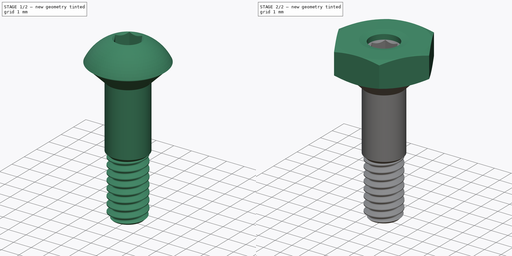
[diagram: build sequence overview — one tinted view per stage of 2, left to right]
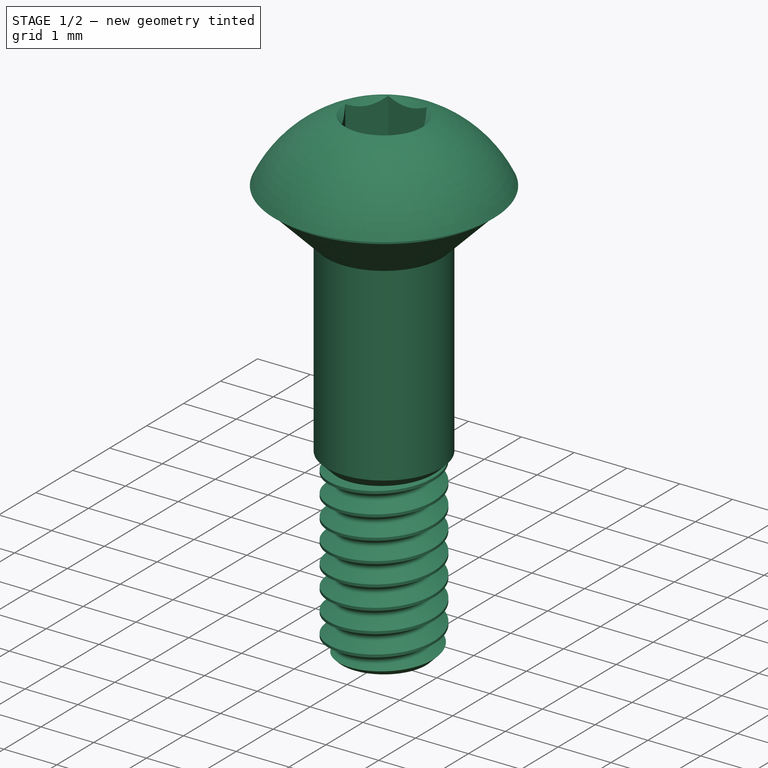
[diagram: stage 1 of 2 — iso view after this stage's code; geometry added in this stage tinted green]
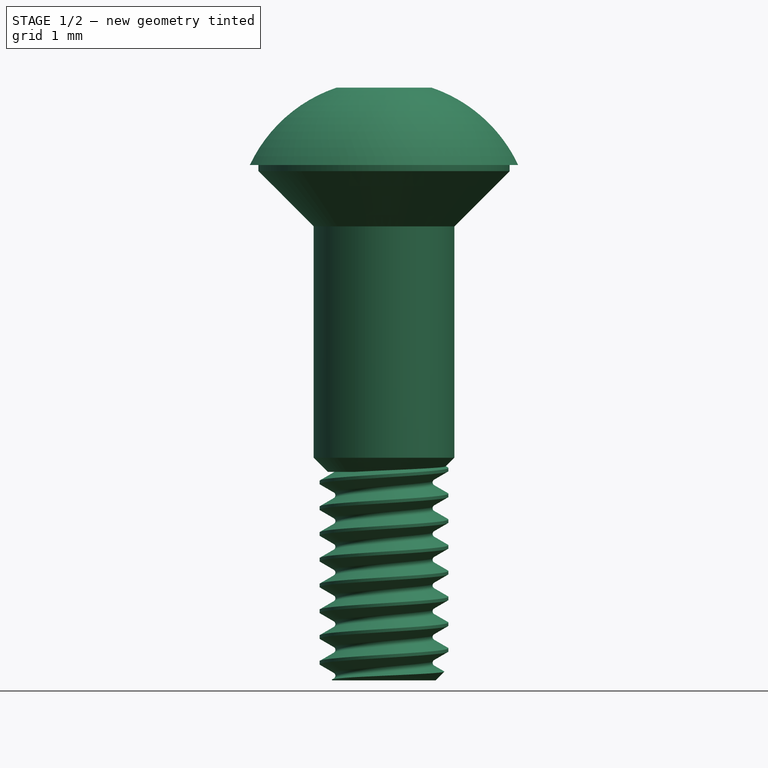
[diagram: stage 1 of 2 — front view after this stage's code; geometry added in this stage tinted green]
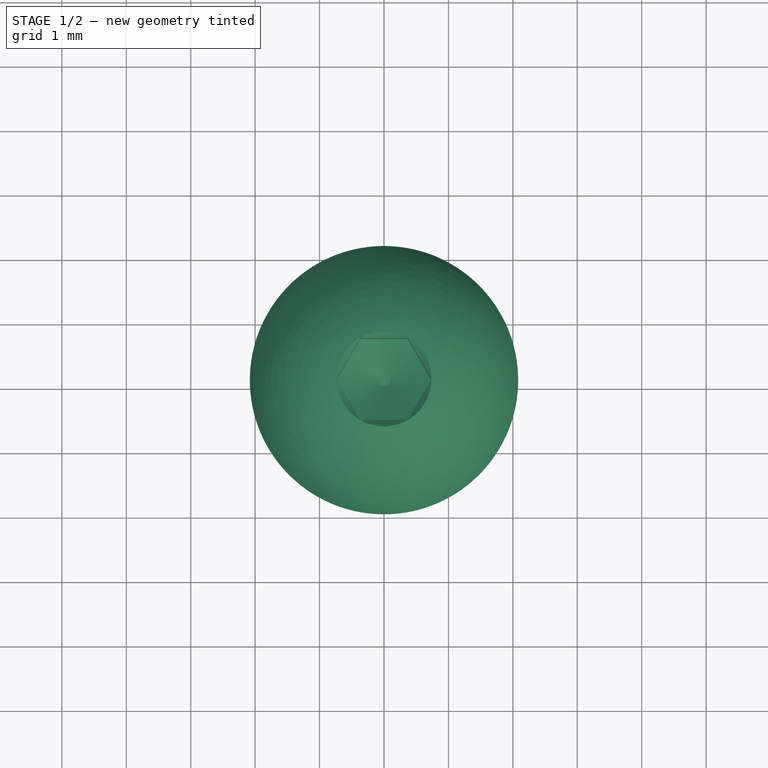
[diagram: stage 1 of 2 — top view after this stage's code; geometry added in this stage tinted green]
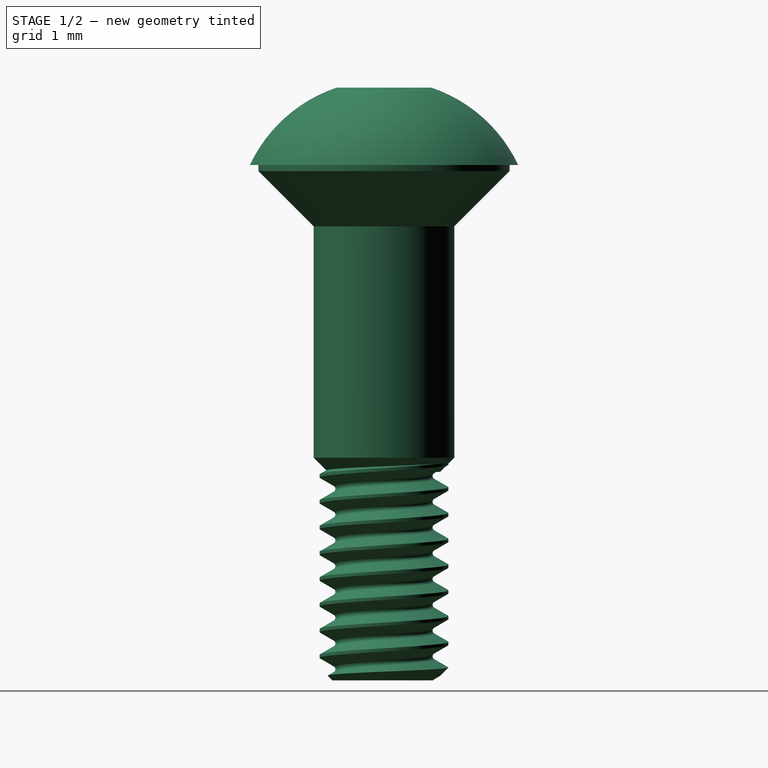
[diagram: stage 1 of 2 — right view after this stage's code; geometry added in this stage tinted green]
FCSTD DOCUMENT  (FreeCAD 0.20R29603 (Git))
Label: PCBot
License: All rights reserved
LicenseURL: http://en.wikipedia.org/wiki/All_rights_reserved
objects: App::Link×42, App::DocumentObjectGroup×12, Part::FeaturePython×7, PartDesign::CoordinateSystem×6, App::Part×5, Sketcher::SketchObject×2, App::FeaturePython×1, Part::Feature×1
note: 16 computed .brp shape members not serialized (recipe doc carries the construction recipe); baked Part::Feature solids carry a one-line shape summary decoded from their .brp
EXTERNAL_REF file=PCB.FCStd obj=LCS_1
EXTERNAL_REF file=PCB.FCStd obj=Body
EXTERNAL_REF file=PCB.FCStd obj=HoleAxis_2
EXTERNAL_REF file=PCB.FCStd obj=HoleAxis_1
EXTERNAL_REF file=PCB.FCStd obj=HoleAxis_3
EXTERNAL_REF file=PCB.FCStd obj=HoleAxis_4
EXTERNAL_REF file=PCB.FCStd obj=HoleAxis_8
EXTERNAL_REF file=PCB.FCStd obj=HoleAxis_7
EXTERNAL_REF file=PCB.FCStd obj=HoleAxis_5
EXTERNAL_REF file=PCB.FCStd obj=HoleAxis_6
EXTERNAL_REF file=FrontBumper.FCStd obj=HoleAxis_1
EXTERNAL_REF file=PCB.FCStd obj=HoleAxis_13
EXTERNAL_REF file=FrontBumper.FCStd obj=Body
EXTERNAL_REF file=PCB.FCStd obj=HoleAxis_11
EXTERNAL_REF file=SMTSO2020CTJ.FCStd obj=HoleAxis_1
EXTERNAL_REF file=SMTSO2020CTJ.FCStd obj=Body
EXTERNAL_REF file=PCB.FCStd obj=HoleAxis_12
EXTERNAL_REF file=PCB.FCStd obj=HoleAxis_9
EXTERNAL_REF file=PCB.FCStd obj=HoleAxis_10
EXTERNAL_REF file=PCB.FCStd obj=HoleAxis_14
EXTERNAL_REF file=Motor.FCStd obj=HoleAxis_4
EXTERNAL_REF file=Motor.FCStd obj=Assembly
EXTERNAL_REF file=../../../../.cache/FreeCAD/Cache/FreeCAD_Doc_6d189d8d-c838-4f32-882a-cff2a5624c7c_da39a3_388612 obj=Assembly
EXTERNAL_REF file=../../../../.cache/FreeCAD/Cache/FreeCAD_Doc_7d98f5b5-ec9e-49f0-8bac-8bc9873ec71e_da39a3_388612 obj=Assembly
EXTERNAL_REF file=../../../../.cache/FreeCAD/Cache/FreeCAD_Doc_5ac747bb-42f3-404e-b44a-4cc5ef7ffdea_da39a3_388612 obj=Assembly
EXTERNAL_REF file=../../../../.cache/FreeCAD/Cache/FreeCAD_Doc_28002222-87aa-4ac9-8368-17bd2809cf7e_da39a3_388612 obj=Assembly
EXTERNAL_REF file=Motor.FCStd obj=LCS_3
EXTERNAL_REF file=RearBumper.FCStd obj=HoleAxis_1
EXTERNAL_REF file=RearBumper.FCStd obj=Body
EXTERNAL_REF file=ServoMount.FCStd obj=LCS_1
EXTERNAL_REF file=ServoMount.FCStd obj=Part
EXTERNAL_REF file=ServoMount.FCStd obj=LCS_0
EXTERNAL_REF file=ServoMount.FCStd obj=servo_drive
EXTERNAL_REF file=ServoMount.FCStd obj=servo_arm
EXTERNAL_REF file=RearBumper.FCStd obj=LCS_1
EXTERNAL_REF file=RearLinkage.FCStd obj=LCS_1
EXTERNAL_REF file=RearLinkage.FCStd obj=rear_linkage_body
EXTERNAL_REF file=RearLinkage.FCStd obj=hole_2
EXTERNAL_REF file=ServoLinkage.FCStd obj=LCS_1
EXTERNAL_REF file=ServoLinkage.FCStd obj=Body
EXTERNAL_REF file=RearBumper.FCStd obj=left_inner_hole

FEATURE [PartDesign::CoordinateSystem] LCS_1
  AttacherType = Attacher::AttachEngine3D
  MapMode = 11
  Placement = pos=(0,0,1.45974) rot=(0,0,1;1.5708rad)
  Support = -> [Nut]
FEATURE [App::Part] Part  label="#2_nut"
  Group = -> [Nut,LCS_1]
  Origin = -> Origin001
FEATURE [App::Link] m2_nut  label="rear_left_rear_nut"
  AttachedBy = #LCS_1
  AttachedTo = pcb_body#HoleAxis_2
  AttachmentOffset = pos=(0,0,2.5) rot=(0,0,1;1.5708rad)
  LinkPlacement = pos=(-35.75,41.8,1.04026) rot=(0,0,1;0rad)
  LinkedObject = -> Part
  Placement = pos=(-35.75,41.8,1.04026) rot=(0,0,1;0rad)
  SolverId = Asm4EE
  expr: Placement = pcb_body.Placement * PCB#HoleAxis_2.Placement * AttachmentOffset * LCS_1.Placement ^ -1
FEATURE [App::Link] _2_nut  label="rear_left_front_nut"
  AttachedBy = #LCS_1
  AttachedTo = pcb_body#HoleAxis_1
  AttachmentOffset = pos=(0,0,2.5) rot=(0,0,1;1.5708rad)
  LinkPlacement = pos=(-35.75,23.8,1.04026) rot=(0,0,1;0rad)
  LinkedObject = -> Part
  Placement = pos=(-35.75,23.8,1.04026) rot=(0,0,1;0rad)
  SolverId = Asm4EE
  expr: Placement = pcb_body.Placement * PCB#HoleAxis_1.Placement * AttachmentOffset * LCS_1.Placement ^ -1
FEATURE [App::Link] _2_nut001  label="rear_right_rear_nut"
  AttachedBy = #LCS_1
  AttachedTo = pcb_body#HoleAxis_3
  AttachmentOffset = pos=(0,0,2.5) rot=(0,0,1;1.5708rad)
  LinkPlacement = pos=(35.75,41.8,1.04026) rot=(0,0,1;0rad)
  LinkedObject = -> Part
  Placement = pos=(35.75,41.8,1.04026) rot=(0,0,1;0rad)
  SolverId = Asm4EE
  expr: Placement = pcb_body.Placement * PCB#HoleAxis_3.Placement * AttachmentOffset * LCS_1.Placement ^ -1
FEATURE [App::Link] _2_nut002  label="rear_right_front_nut"
  AttachedBy = #LCS_1
  AttachedTo = pcb_body#HoleAxis_4
  AttachmentOffset = pos=(0,0,2.5) rot=(0,0,1;1.5708rad)
  LinkPlacement = pos=(35.75,23.8,1.04026) rot=(0,0,1;0rad)
  LinkedObject = -> Part
  Placement = pos=(35.75,23.8,1.04026) rot=(0,0,1;0rad)
  SolverId = Asm4EE
  expr: Placement = pcb_body.Placement * PCB#HoleAxis_4.Placement * AttachmentOffset * LCS_1.Placement ^ -1
FEATURE [App::Link] _2_nut003  label="front_left_rear_nut"
  AttachedBy = #LCS_1
  AttachedTo = pcb_body#HoleAxis_8
  AttachmentOffset = pos=(0,0,2.5) rot=(0,0,1;1.5708rad)
  LinkPlacement = pos=(-35.75,-10.8,1.04026) rot=(0,0,1;0rad)
  LinkedObject = -> Part
  Placement = pos=(-35.75,-10.8,1.04026) rot=(0,0,1;0rad)
  SolverId = Asm4EE
  expr: Placement = pcb_body.Placement * PCB#HoleAxis_8.Placement * AttachmentOffset * LCS_1.Placement ^ -1
FEATURE [App::Link] _2_nut004  label="front_left_front_nut"
  AttachedBy = #LCS_1
  AttachedTo = pcb_body#HoleAxis_7
  AttachmentOffset = pos=(0,0,2.5) rot=(0,0,1;1.5708rad)
  LinkPlacement = pos=(-35.75,-28.8,1.04026) rot=(0,0,1;0rad)
  LinkedObject = -> Part
  Placement = pos=(-35.75,-28.8,1.04026) rot=(0,0,1;0rad)
  SolverId = Asm4EE
  expr: Placement = pcb_body.Placement * PCB#HoleAxis_7.Placement * AttachmentOffset * LCS_1.Placement ^ -1
FEATURE [App::Link] _2_nut005  label="front_right_rear_nut"
  AttachedBy = #LCS_1
  AttachedTo = pcb_body#HoleAxis_5
  AttachmentOffset = pos=(0,0,2.5) rot=(0,0,1;1.5708rad)
  LinkPlacement = pos=(35.75,-10.8,1.04026) rot=(0,0,1;0rad)
  LinkedObject = -> Part
  Placement = pos=(35.75,-10.8,1.04026) rot=(0,0,1;0rad)
  SolverId = Asm4EE
  expr: Placement = pcb_body.Placement * PCB#HoleAxis_5.Placement * AttachmentOffset * LCS_1.Placement ^ -1
FEATURE [App::Link] front_right_rear_nut  label="front_right_front_nut"
  AttachedBy = #LCS_1
  AttachedTo = pcb_body#HoleAxis_6
  AttachmentOffset = pos=(0,0,2.5) rot=(0,0,1;1.5708rad)
  LinkPlacement = pos=(35.75,-28.8,1.04026) rot=(0,0,1;0rad)
  LinkedObject = -> Part
  Placement = pos=(35.75,-28.8,1.04026) rot=(0,0,1;0rad)
  SolverId = Asm4EE
  expr: Placement = pcb_body.Placement * PCB#HoleAxis_6.Placement * AttachmentOffset * LCS_1.Placement ^ -1
FEATURE [Part::FeaturePython] Screw  label="#2x3/16in-Screw"  # Fasteners workbench fastener (typed FeaturePython)
  diameter = 3
  invert = false
  leftHanded = false
  length = 4
  lengthCustom = 4.7625
  matchOuter = false
  offset = 0
  thread = false
  type = 6
FEATURE [PartDesign::CoordinateSystem] LCS_2
  AttacherType = Attacher::AttachEngine3D
  MapMode = 11
  Placement = pos=(0,0,-4.54406) rot=(0,0,1;1.5708rad)
  Support = -> [Screw]
FEATURE [App::Part] Part001  label="#2_screw"
  Group = -> [Screw,LCS_2]
  Origin = -> Origin002
FEATURE [App::Link] _2_screw  label="rear_left_rear_screw"
  AttachedBy = #LCS_2
  AttachedTo = pcb_body#HoleAxis_2
  AttachmentOffset = pos=(0,0,2.8) rot=(0,1,0;3.14159rad)
  LinkPlacement = pos=(-35.75,41.8,-1.74406) rot=(-0.707107,0.707107,0;3.14159rad)
  LinkedObject = -> Part001
  Placement = pos=(-35.75,41.8,-1.74406) rot=(-0.707107,0.707107,0;3.14159rad)
  SolverId = Asm4EE
  expr: Placement = pcb_body.Placement * PCB#HoleAxis_2.Placement * AttachmentOffset * LCS_2.Placement ^ -1
FEATURE [App::Link] rear_left_rear_screw  label="rear_left_front_screw"
  AttachedBy = #LCS_2
  AttachedTo = pcb_body#HoleAxis_1
  AttachmentOffset = pos=(0,0,2.8) rot=(0,1,0;3.14159rad)
  LinkPlacement = pos=(-35.75,23.8,-1.74406) rot=(-0.707107,0.707107,0;3.14159rad)
  LinkedObject = -> Part001
  Placement = pos=(-35.75,23.8,-1.74406) rot=(-0.707107,0.707107,0;3.14159rad)
  SolverId = Asm4EE
  expr: Placement = pcb_body.Placement * PCB#HoleAxis_1.Placement * AttachmentOffset * LCS_2.Placement ^ -1
FEATURE [App::Link] rear_right_rear_screw
  AttachedBy = #LCS_2
  AttachedTo = pcb_body#HoleAxis_3
  AttachmentOffset = pos=(0,0,2.8) rot=(0,1,0;3.14159rad)
  LinkPlacement = pos=(35.75,41.8,-1.74406) rot=(-0.707107,0.707107,0;3.14159rad)
  LinkedObject = -> Part001
  Placement = pos=(35.75,41.8,-1.74406) rot=(-0.707107,0.707107,0;3.14159rad)
  SolverId = Asm4EE
  expr: Placement = pcb_body.Placement * PCB#HoleAxis_3.Placement * AttachmentOffset * LCS_2.Placement ^ -1
FEATURE [App::Link] rear_right_front_screw
  AttachedBy = #LCS_2
  AttachedTo = pcb_body#HoleAxis_4
  AttachmentOffset = pos=(0,0,2.8) rot=(0,1,0;3.14159rad)
  LinkPlacement = pos=(35.75,23.8,-1.74406) rot=(-0.707107,0.707107,0;3.14159rad)
  LinkedObject = -> Part001
  Placement = pos=(35.75,23.8,-1.74406) rot=(-0.707107,0.707107,0;3.14159rad)
  SolverId = Asm4EE
  expr: Placement = pcb_body.Placement * PCB#HoleAxis_4.Placement * AttachmentOffset * LCS_2.Placement ^ -1
FEATURE [App::Link] front_left_rear_screw
  AttachedBy = #LCS_2
  AttachedTo = pcb_body#HoleAxis_8
  AttachmentOffset = pos=(0,0,2.8) rot=(0,1,0;3.14159rad)
  LinkPlacement = pos=(-35.75,-10.8,-1.74406) rot=(-0.707107,0.707107,0;3.14159rad)
  LinkedObject = -> Part001
  Placement = pos=(-35.75,-10.8,-1.74406) rot=(-0.707107,0.707107,0;3.14159rad)
  SolverId = Asm4EE
  expr: Placement = pcb_body.Placement * PCB#HoleAxis_8.Placement * AttachmentOffset * LCS_2.Placement ^ -1
FEATURE [App::Link] front_left_front_screw
  AttachedBy = #LCS_2
  AttachedTo = pcb_body#HoleAxis_7
  AttachmentOffset = pos=(0,0,2.8) rot=(0,1,0;3.14159rad)
  LinkPlacement = pos=(-35.75,-28.8,-1.74406) rot=(-0.707107,0.707107,0;3.14159rad)
  LinkedObject = -> Part001
  Placement = pos=(-35.75,-28.8,-1.74406) rot=(-0.707107,0.707107,0;3.14159rad)
  SolverId = Asm4EE
  expr: Placement = pcb_body.Placement * PCB#HoleAxis_7.Placement * AttachmentOffset * LCS_2.Placement ^ -1
FEATURE [App::Link] front_right_rear_screw
  AttachedBy = #LCS_2
  AttachedTo = pcb_body#HoleAxis_5
  AttachmentOffset = pos=(0,0,2.8) rot=(0,1,0;3.14159rad)
  LinkPlacement = pos=(35.75,-10.8,-1.74406) rot=(-0.707107,0.707107,0;3.14159rad)
  LinkedObject = -> Part001
  Placement = pos=(35.75,-10.8,-1.74406) rot=(-0.707107,0.707107,0;3.14159rad)
  SolverId = Asm4EE
  expr: Placement = pcb_body.Placement * PCB#HoleAxis_5.Placement * AttachmentOffset * LCS_2.Placement ^ -1
FEATURE [App::Link] front_right_front_screw
  AttachedBy = #LCS_2
  AttachedTo = pcb_body#HoleAxis_6
  AttachmentOffset = pos=(0,0,2.8) rot=(0,1,0;3.14159rad)
  LinkPlacement = pos=(35.75,-28.8,-1.74406) rot=(-0.707107,0.707107,0;3.14159rad)
  LinkedObject = -> Part001
  Placement = pos=(35.75,-28.8,-1.74406) rot=(-0.707107,0.707107,0;3.14159rad)
  SolverId = Asm4EE
  expr: Placement = pcb_body.Placement * PCB#HoleAxis_6.Placement * AttachmentOffset * LCS_2.Placement ^ -1
FEATURE [App::DocumentObjectGroup] Group001  label="motor_fasteners"
  Group = -> [m2_nut,_2_nut,_2_nut001,_2_nut002,_2_nut003,_2_nut004,_2_nut005,front_right_rear_nut,_2_screw,rear_left_rear_screw,rear_right_rear_screw,rear_right_front_screw,front_left_rear_screw,front_left_front_screw,front_right_rear_screw,front_right_front_screw]
FEATURE [App::Link] FrontBumperBody  label="front_bumper_body"
  AttachedBy = #HoleAxis_1
  AttachedTo = pcb_body#HoleAxis_13
  AttachmentOffset = pos=(0,0,0) rot=(1,0,0;3.14159rad)
  LinkPlacement = pos=(-7.1e-15,7.1e-15,-1.7e-14) rot=(0,0,1;0rad)
  LinkedObject = -> <external FrontBumper.FCStd>#Body
  Placement = pos=(-7.1e-15,7.1e-15,-1.7e-14) rot=(0,0,1;0rad)
  SolverId = Asm4EE
  expr: Placement = pcb_body.Placement * PCB#HoleAxis_13.Placement * AttachmentOffset * FrontBumper#HoleAxis_1.Placement ^ -1
FEATURE [App::Link] SMTSO2020CTJ_body  label="rear_left_standoff"
  AttachedBy = #HoleAxis_1
  AttachedTo = pcb_body#HoleAxis_11
  AttachmentOffset = pos=(0,0,2) rot=(0,0,1;0rad)
  LinkPlacement = pos=(-5.5,41.5,-1.53) rot=(0,0,1;0rad)
  LinkedObject = -> <external SMTSO2020CTJ.FCStd>#Body
  Placement = pos=(-5.5,41.5,-1.53) rot=(0,0,1;0rad)
  SolverId = Asm4EE
  expr: Placement = pcb_body.Placement * PCB#HoleAxis_11.Placement * AttachmentOffset * SMTSO2020CTJ#HoleAxis_1.Placement ^ -1
FEATURE [App::Link] rear_right_standoff
  AttachedBy = #HoleAxis_1
  AttachedTo = pcb_body#HoleAxis_12
  AttachmentOffset = pos=(0,0,2) rot=(0,0,1;0rad)
  LinkPlacement = pos=(5.5,41.5,-1.53) rot=(0,0,1;0rad)
  LinkedObject = -> <external SMTSO2020CTJ.FCStd>#Body
  Placement = pos=(5.5,41.5,-1.53) rot=(0,0,1;0rad)
  SolverId = Asm4EE
  expr: Placement = pcb_body.Placement * PCB#HoleAxis_12.Placement * AttachmentOffset * SMTSO2020CTJ#HoleAxis_1.Placement ^ -1
FEATURE [App::Link] center_left_standoff
  AttachedBy = #HoleAxis_1
  AttachedTo = pcb_body#HoleAxis_9
  AttachmentOffset = pos=(0,0,2) rot=(0,0,1;0rad)
  LinkPlacement = pos=(-34.9,6.5,-1.53) rot=(0,0,1;0rad)
  LinkedObject = -> <external SMTSO2020CTJ.FCStd>#Body
  Placement = pos=(-34.9,6.5,-1.53) rot=(0,0,1;0rad)
  SolverId = Asm4EE
  expr: Placement = pcb_body.Placement * PCB#HoleAxis_9.Placement * AttachmentOffset * SMTSO2020CTJ#HoleAxis_1.Placement ^ -1
FEATURE [App::Link] center_right_standoff
  AttachedBy = #HoleAxis_1
  AttachedTo = pcb_body#HoleAxis_10
  AttachmentOffset = pos=(0,0,2) rot=(0,0,1;0rad)
  LinkPlacement = pos=(34.9,6.5,-1.53) rot=(0,0,1;0rad)
  LinkedObject = -> <external SMTSO2020CTJ.FCStd>#Body
  Placement = pos=(34.9,6.5,-1.53) rot=(0,0,1;0rad)
  SolverId = Asm4EE
  expr: Placement = pcb_body.Placement * PCB#HoleAxis_10.Placement * AttachmentOffset * SMTSO2020CTJ#HoleAxis_1.Placement ^ -1
FEATURE [App::Link] front_left_standoff
  AttachedBy = #HoleAxis_1
  AttachedTo = pcb_body#HoleAxis_13
  AttachmentOffset = pos=(0,0,2) rot=(0,0,1;0rad)
  LinkPlacement = pos=(-29.4289,-36.5,-1.53) rot=(0,0,1;0rad)
  LinkedObject = -> <external SMTSO2020CTJ.FCStd>#Body
  Placement = pos=(-29.4289,-36.5,-1.53) rot=(0,0,1;0rad)
  SolverId = Asm4EE
  expr: Placement = pcb_body.Placement * PCB#HoleAxis_13.Placement * AttachmentOffset * SMTSO2020CTJ#HoleAxis_1.Placement ^ -1
FEATURE [App::Link] front_right_standoff
  AttachedBy = #HoleAxis_1
  AttachedTo = pcb_body#HoleAxis_14
  AttachmentOffset = pos=(0,0,2) rot=(0,0,1;0rad)
  LinkPlacement = pos=(29.4289,-36.5,-1.53) rot=(0,0,1;0rad)
  LinkedObject = -> <external SMTSO2020CTJ.FCStd>#Body
  Placement = pos=(29.4289,-36.5,-1.53) rot=(0,0,1;0rad)
  SolverId = Asm4EE
  expr: Placement = pcb_body.Placement * PCB#HoleAxis_14.Placement * AttachmentOffset * SMTSO2020CTJ#HoleAxis_1.Placement ^ -1
FEATURE [App::DocumentObjectGroup] Group002  label="pcb_standoffs"
  Group = -> [SMTSO2020CTJ_body,rear_right_standoff,center_left_standoff,center_right_standoff,front_left_standoff,front_right_standoff]
FEATURE [App::DocumentObjectGroup] Group004  label="pcb"
  Group = -> [pcb_body,Group002]
FEATURE [Part::FeaturePython] Screw001  label="M2x8-Screw"  # Fasteners workbench fastener (typed FeaturePython)
  diameter = 1
  invert = false
  leftHanded = false
  length = 2
  lengthCustom = 8
  matchOuter = false
  offset = 0
  thread = true
  type = 29
FEATURE [PartDesign::CoordinateSystem] LCS_3
  AttacherType = Attacher::AttachEngine3D
  AttachmentOffset = pos=(0,0,2) rot=(0,0,1;0rad)
  MapMode = 11
  Placement = pos=(-1e-16,0,-2) rot=(0.707107,0.707107,0;3.14159rad)
  Support = -> [Screw001]
FEATURE [App::Part] Part002  label="m2_screw"
  Group = -> [Screw001,LCS_3]
  Origin = -> Origin003
FEATURE [App::Link] front_bumper_left_screw
  AttachedBy = #LCS_3
  AttachedTo = front_left_standoff#HoleAxis_1
  AttachmentOffset = pos=(0,0,1) rot=(0,1,0;3.14159rad)
  LinkPlacement = pos=(-29.4289,-36.5,5) rot=(0,0,1;1.5708rad)
  LinkedObject = -> Part002
  Placement = pos=(-29.4289,-36.5,5) rot=(0,0,1;1.5708rad)
  SolverId = Asm4EE
  expr: Placement = front_left_standoff.Placement * SMTSO2020CTJ#HoleAxis_1.Placement * AttachmentOffset * LCS_3.Placement ^ -1
FEATURE [App::Link] front_bumper_right_screw
  AttachedBy = #LCS_3
  AttachedTo = front_right_standoff#HoleAxis_1
  AttachmentOffset = pos=(0,0,1) rot=(0,1,0;3.14159rad)
  LinkPlacement = pos=(29.4289,-36.5,5) rot=(0,0,1;1.5708rad)
  LinkedObject = -> Part002
  Placement = pos=(29.4289,-36.5,5) rot=(0,0,1;1.5708rad)
  SolverId = Asm4EE
  expr: Placement = front_right_standoff.Placement * SMTSO2020CTJ#HoleAxis_1.Placement * AttachmentOffset * LCS_3.Placement ^ -1
FEATURE [App::DocumentObjectGroup] Group006  label="front_bumper_fastners"
  Group = -> [front_bumper_left_screw,front_bumper_right_screw]
FEATURE [App::DocumentObjectGroup] Group005  label="front_bumper"
  Group = -> [FrontBumperBody,Group006]
FEATURE [App::Link] Motor  label="rear_left_motor_"
  AttachedBy = #HoleAxis_4
  AttachedTo = pcb_body#HoleAxis_2
  AttachmentOffset = pos=(0,0,0) rot=(0,0,1;3.14159rad)
  LinkPlacement = pos=(-30.8,32.8,0) rot=(0,0,1;3.14159rad)
  LinkedObject = -> <external Motor.FCStd>#Assembly
  Placement = pos=(-30.8,32.8,0) rot=(0,0,1;3.14159rad)
  SolverId = Asm4EE
  expr: Placement = pcb_body.Placement * PCB#HoleAxis_2.Placement * AttachmentOffset * Motor#HoleAxis_4.Placement ^ -1
FEATURE [App::Link] rear_right_motor  label="rear_right_motor_"
  AttachedBy = #HoleAxis_4
  AttachedTo = pcb_body#HoleAxis_4
  LinkPlacement = pos=(30.8,32.8,0) rot=(0,0,1;0rad)
  LinkedObject = -> <external Motor.FCStd>#Assembly
  Placement = pos=(30.8,32.8,0) rot=(0,0,1;0rad)
  SolverId = Asm4EE
  expr: Placement = pcb_body.Placement * PCB#HoleAxis_4.Placement * AttachmentOffset * Motor#HoleAxis_4.Placement ^ -1
FEATURE [App::Link] front_left_motor  label="front_left_motor_"
  AttachedBy = #HoleAxis_4
  AttachedTo = pcb_body#HoleAxis_8
  AttachmentOffset = pos=(0,0,0) rot=(0,0,1;3.14159rad)
  LinkPlacement = pos=(-30.8,-19.8,0) rot=(0,0,1;3.14159rad)
  LinkedObject = -> <external Motor.FCStd>#Assembly
  Placement = pos=(-30.8,-19.8,0) rot=(0,0,1;3.14159rad)
  SolverId = Asm4EE
  expr: Placement = pcb_body.Placement * PCB#HoleAxis_8.Placement * AttachmentOffset * Motor#HoleAxis_4.Placement ^ -1
FEATURE [App::Link] Motor001  label="front_right_motor_"
  AttachedBy = #HoleAxis_4
  AttachedTo = pcb_body#HoleAxis_6
  LinkPlacement = pos=(30.8,-19.8,0) rot=(0,0,1;0rad)
  LinkedObject = -> <external Motor.FCStd>#Assembly
  Placement = pos=(30.8,-19.8,0) rot=(0,0,1;0rad)
  SolverId = Asm4EE
  expr: Placement = pcb_body.Placement * PCB#HoleAxis_6.Placement * AttachmentOffset * Motor#HoleAxis_4.Placement ^ -1
FEATURE [Part::FeaturePython] Motor_var  label="rear_left_motor"  # link proxy (typed FeaturePython)
  AttachedBy = #HoleAxis_4
  AttachedTo = pcb_body#HoleAxis_2
  AttachmentOffset = pos=(0,0,0) rot=(0,0,1;3.14159rad)
  LinkedObject = -> <external ../../../../.cache/FreeCAD/Cache/FreeCAD_Doc_6d189d8d-c838-4f32-882a-cff2a5624c7c_da39a3_388612>#Assembly
  Placement = pos=(-30.8,32.8,0) rot=(0,0,1;3.14159rad)
  SolverId = Asm4EE
  SourceObject = -> <external Motor.FCStd>#Assembly
  Type = Asm4::VariantLink
  wheelRotation = 0
  expr: Placement = pcb_body.Placement * PCB#HoleAxis_2.Placement * AttachmentOffset * varTmpDoc_1#HoleAxis_4.Placement ^ -1
  expr: wheelRotation = -Variables.rightWheelRotation
FEATURE [Part::FeaturePython] Motor_var_2  label="rear_right_motor"  # link proxy (typed FeaturePython)
  AttachedBy = #HoleAxis_4
  AttachedTo = pcb_body#HoleAxis_4
  LinkedObject = -> <external ../../../../.cache/FreeCAD/Cache/FreeCAD_Doc_7d98f5b5-ec9e-49f0-8bac-8bc9873ec71e_da39a3_388612>#Assembly
  Placement = pos=(30.8,32.8,0) rot=(0,0,1;0rad)
  SolverId = Asm4EE
  SourceObject = -> <external Motor.FCStd>#Assembly
  Type = Asm4::VariantLink
  wheelRotation = 0
  expr: Placement = pcb_body.Placement * PCB#HoleAxis_4.Placement * AttachmentOffset * varTmpDoc_2#HoleAxis_4.Placement ^ -1
  expr: wheelRotation = Variables.rightWheelRotation
FEATURE [Part::FeaturePython] Motor_var_3  label="front_left_motor"  # link proxy (typed FeaturePython)
  AttachedBy = #HoleAxis_4
  AttachedTo = pcb_body#HoleAxis_8
  AttachmentOffset = pos=(0,0,0) rot=(0,0,1;3.14159rad)
  LinkedObject = -> <external ../../../../.cache/FreeCAD/Cache/FreeCAD_Doc_5ac747bb-42f3-404e-b44a-4cc5ef7ffdea_da39a3_388612>#Assembly
  Placement = pos=(-30.8,-19.8,0) rot=(0,0,1;3.14159rad)
  SolverId = Asm4EE
  SourceObject = -> <external Motor.FCStd>#Assembly
  Type = Asm4::VariantLink
  wheelRotation = 0
  expr: Placement = pcb_body.Placement * PCB#HoleAxis_8.Placement * AttachmentOffset * varTmpDoc_3#HoleAxis_4.Placement ^ -1
  expr: wheelRotation = -Variables.rightWheelRotation
FEATURE [Part::FeaturePython] Motor_var_4  label="front_right_motor"  # link proxy (typed FeaturePython)
  AttachedBy = #HoleAxis_4
  AttachedTo = pcb_body#HoleAxis_6
  LinkedObject = -> <external ../../../../.cache/FreeCAD/Cache/FreeCAD_Doc_28002222-87aa-4ac9-8368-17bd2809cf7e_da39a3_388612>#Assembly
  Placement = pos=(30.8,-19.8,0) rot=(0,0,1;0rad)
  SolverId = Asm4EE
  SourceObject = -> <external Motor.FCStd>#Assembly
  Type = Asm4::VariantLink
  wheelRotation = 0
  expr: Placement = pcb_body.Placement * PCB#HoleAxis_6.Placement * AttachmentOffset * varTmpDoc_4#HoleAxis_4.Placement ^ -1
  expr: wheelRotation = Variables.rightWheelRotation
FEATURE [App::DocumentObjectGroup] Group  label="motors"
  Group = -> [Group001,Motor,rear_right_motor,front_left_motor,Motor001,Motor_var,Motor_var_2,Motor_var_3,Motor_var_4]
FEATURE [Part::Feature] Part__Feature  label="SHR-06V-S-B"
  shape: bbox 9 x 2.8 x 5 mm, 88 faces (baked)
FEATURE [PartDesign::CoordinateSystem] LCS_0
  AttacherType = Attacher::AttachEngine3D
  MapMode = 2
  Support = -> [X_Axis004]
FEATURE [PartDesign::CoordinateSystem] LCS_4
  AttacherType = Attacher::AttachEngine3D
  MapMode = 45
  Placement = pos=(2e-16,-2.47452,3.90001) rot=(0,0,1;1.5708rad)
  Support = -> [Part__Feature]
FEATURE [App::Part] Part_2  label="SHR-06V-S-B001"
  Group = -> [LCS_0,Part__Feature,LCS_4]
  Origin = -> Origin004
FEATURE [App::DocumentObjectGroup] Parts
  Group = -> [Part,Part001,Part002,Part_2]
FEATURE [App::Link] SHR_06V_S_B001  label="rear_left_motor_connector"
  AttachedBy = #LCS_4
  AttachedTo = Motor#LCS_3
  AttachmentOffset = pos=(0,0,0) rot=(1,0,0;3.14159rad)
  LinkPlacement = pos=(-14.4446,32.8,14.7) rot=(-0.707107,0.707107,0;3.14159rad)
  LinkedObject = -> Part_2
  Placement = pos=(-14.4446,32.8,14.7) rot=(-0.707107,0.707107,0;3.14159rad)
  SolverId = Asm4EE
  expr: Placement = Motor.Placement * Motor#LCS_3.Placement * AttachmentOffset * LCS_4.Placement ^ -1
FEATURE [App::Link] rear_right_motor_connector
  AttachedBy = #LCS_4
  AttachedTo = rear_right_motor#LCS_3
  AttachmentOffset = pos=(0,0,0) rot=(1,0,0;3.14159rad)
  LinkPlacement = pos=(14.4446,32.8,14.7) rot=(0.707107,0.707107,0;3.14159rad)
  LinkedObject = -> Part_2
  Placement = pos=(14.4446,32.8,14.7) rot=(0.707107,0.707107,0;3.14159rad)
  SolverId = Asm4EE
  expr: Placement = rear_right_motor.Placement * Motor#LCS_3.Placement * AttachmentOffset * LCS_4.Placement ^ -1
FEATURE [App::Link] SHR_06V_S_B001001  label="front_left_motor_connector"
  AttachedBy = #LCS_4
  AttachedTo = front_left_motor#LCS_3
  AttachmentOffset = pos=(0,0,0) rot=(1,0,0;3.14159rad)
  LinkPlacement = pos=(-14.4446,-19.8,14.7) rot=(-0.707107,0.707107,0;3.14159rad)
  LinkedObject = -> Part_2
  Placement = pos=(-14.4446,-19.8,14.7) rot=(-0.707107,0.707107,0;3.14159rad)
  SolverId = Asm4EE
  expr: Placement = front_left_motor.Placement * Motor#LCS_3.Placement * AttachmentOffset * LCS_4.Placement ^ -1
FEATURE [App::Link] SHR_06V_S_B001002  label="front_right_motor_connector"
  AttachedBy = #LCS_4
  AttachedTo = Motor001#LCS_3
  AttachmentOffset = pos=(0,0,0) rot=(1,0,0;3.14159rad)
  LinkPlacement = pos=(14.4446,-19.8,14.7) rot=(0.707107,0.707107,0;3.14159rad)
  LinkedObject = -> Part_2
  Placement = pos=(14.4446,-19.8,14.7) rot=(0.707107,0.707107,0;3.14159rad)
  SolverId = Asm4EE
  expr: Placement = Motor001.Placement * Motor#LCS_3.Placement * AttachmentOffset * LCS_4.Placement ^ -1
FEATURE [App::DocumentObjectGroup] Group007  label="cables"
  Group = -> [SHR_06V_S_B001,rear_right_motor_connector,SHR_06V_S_B001001,SHR_06V_S_B001002]
FEATURE [App::Link] rear_bumper_body
  AttachedBy = #HoleAxis_1
  AttachedTo = pcb_body#HoleAxis_12
  LinkedObject = -> <external RearBumper.FCStd>#Body
  SolverId = Asm4EE
  expr: Placement = pcb_body.Placement * PCB#HoleAxis_12.Placement * AttachmentOffset * RearBumper#HoleAxis_1.Placement ^ -1
FEATURE [App::Link] front_left_screw  label="rear_left_screw"
  AttachedBy = #LCS_3
  AttachedTo = pcb_body#HoleAxis_11
  AttachmentOffset = pos=(0,0,3) rot=(0,1,0;3.14159rad)
  LinkPlacement = pos=(-5.5,41.5,5) rot=(0,0,1;1.5708rad)
  LinkedObject = -> Part002
  Placement = pos=(-5.5,41.5,5) rot=(0,0,1;1.5708rad)
  SolverId = Asm4EE
  expr: Placement = pcb_body.Placement * PCB#HoleAxis_11.Placement * AttachmentOffset * LCS_3.Placement ^ -1
FEATURE [App::Link] rear_right_screw
  AttachedBy = #LCS_3
  AttachedTo = pcb_body#HoleAxis_12
  AttachmentOffset = pos=(0,0,3) rot=(0,1,0;3.14159rad)
  LinkPlacement = pos=(5.5,41.5,5) rot=(0,0,1;1.5708rad)
  LinkedObject = -> Part002
  Placement = pos=(5.5,41.5,5) rot=(0,0,1;1.5708rad)
  SolverId = Asm4EE
  expr: Placement = pcb_body.Placement * PCB#HoleAxis_12.Placement * AttachmentOffset * LCS_3.Placement ^ -1
FEATURE [App::DocumentObjectGroup] Group009  label="rear_bumper_fasteners"
  Group = -> [front_left_screw,rear_right_screw]
FEATURE [App::DocumentObjectGroup] Group008  label="rear_bumper"
  Group = -> [rear_bumper_body,Group009]
FEATURE [App::Link] servo_part
  AttachedBy = #LCS_1
  AttachedTo = pcb_body#LCS_1
  AttachmentOffset = pos=(30,-5,0) rot=(0,0,1;1.5708rad)
  LinkPlacement = pos=(30,-5,0) rot=(0,0,1;1.5708rad)
  LinkedObject = -> <external ServoMount.FCStd>#Part
  Placement = pos=(30,-5,0) rot=(0,0,1;1.5708rad)
  SolverId = Asm4EE
  expr: Placement = pcb_body.Placement * PCB#LCS_1.Placement * AttachmentOffset * ServoMount#LCS_1.Placement ^ -1
FEATURE [App::Link] servo_arm
  AttachedBy = #LCS_0
  AttachedTo = servo_part#servo_drive
  AttachmentOffset = pos=(0,0,-3) rot=(0,0,1;-2.35619rad)
  LinkPlacement = pos=(-5.88297,16.0891,9.98909) rot=(0.357407,0.862856,-0.357407;4.56541rad)
  LinkedObject = -> <external ServoMount.FCStd>#servo_arm
  Placement = pos=(-5.88297,16.0891,9.98909) rot=(0.357407,0.862856,-0.357407;4.56541rad)
  SolverId = Asm4EE
  expr: Placement = servo_part.Placement * ServoMount#servo_drive.Placement * AttachmentOffset * ServoMount#LCS_0.Placement ^ -1
FEATURE [App::Link] rear_linkage_body
  AttachedBy = #LCS_1
  AttachedTo = rear_bumper_body#LCS_1
  AttachmentOffset = pos=(0,0,3) rot=(0,0,1;0rad)
  LinkPlacement = pos=(-18,52.1588,22) rot=(0,1,0;4.71239rad)
  LinkedObject = -> <external RearLinkage.FCStd>#rear_linkage_body
  Placement = pos=(-18,52.1588,22) rot=(0,1,0;4.71239rad)
  SolverId = Asm4EE
  expr: Placement = rear_bumper_body.Placement * RearBumper#LCS_1.Placement * AttachmentOffset * RearLinkage#LCS_1.Placement ^ -1
FEATURE [App::Link] servo_linkage
  AttachedBy = #LCS_1
  AttachedTo = rear_linkage_body001#hole_2
  AttachmentOffset = pos=(0,0,-5) rot=(0,0,1;4.71239rad)
  LinkPlacement = pos=(-5,47.861,26.2977) rot=(0,0,1;4.71239rad)
  LinkedObject = -> <external ServoLinkage.FCStd>#Body
  Placement = pos=(-5,47.861,26.2977) rot=(0,0,1;4.71239rad)
  SolverId = Asm4EE
  expr: Placement = rear_linkage_body001.Placement * RearLinkage#hole_2.Placement * AttachmentOffset * ServoLinkage#LCS_1.Placement ^ -1
FEATURE [App::Link] rear_linkage_body001
  AttachedBy = #LCS_1
  AttachedTo = rear_bumper_body#left_inner_hole
  LinkPlacement = pos=(-10,52.1588,22) rot=(0,-1,0;1.5708rad)
  LinkedObject = -> <external RearLinkage.FCStd>#rear_linkage_body
  Placement = pos=(-10,52.1588,22) rot=(0,-1,0;1.5708rad)
  SolverId = Asm4EE
  expr: Placement = rear_bumper_body.Placement * RearBumper#left_inner_hole.Placement * AttachmentOffset * RearLinkage#LCS_1.Placement ^ -1
FEATURE [App::Part] Assembly
  AssemblyType = Part::Link
  Group = -> [LCS_Origin,Constraints,Variables,Configurations,pcb_body,Group,Group004,front_left_standoff,front_right_standoff,center_right_standoff,center_left_standoff,SMTSO2020CTJ_body,rear_right_standoff,Group002,_2_nut004,rear_right_front_screw,_2_screw,_2_nut005,rear_right_rear_screw,front_right_rear_screw,_2_nut,front_right_front_screw,_2_nut001,rear_left_rear_screw,m2_nut,_2_nut003,front_right_rear_nut,+32 more]
  Origin = -> Origin
  Type = Assembly

RESOLVED EXTERNAL PARTS (link-assembly join: the EXTERNAL_REF files above that resolve inside this repo's crawl, each included once):
---- part FrontBumper.FCStd = doc fcstd_62fa155a6736 ----
FCSTD DOCUMENT  (FreeCAD 0.20R29603 (Git))
Label: FrontBumper
License: All rights reserved
LicenseURL: http://en.wikipedia.org/wiki/All_rights_reserved
objects: Sketcher::SketchObject×7, PartDesign::Line×2, PartDesign::CoordinateSystem×1, PartDesign::Pad×1, PartDesign::Pocket×1, PartDesign::Hole×1, PartDesign::Body×1
note: 17 computed .brp shape members not serialized (recipe doc carries the construction recipe); baked Part::Feature solids carry a one-line shape summary decoded from their .brp

FEATURE [PartDesign::CoordinateSystem] LCS_0
  AttacherType = Attacher::AttachEngine3D
  MapMode = 2
  Support = -> [X_Axis]
FEATURE [Sketcher::SketchObject] Sketch001  label="pcb_outline"
  FullyConstrained = true
  MapMode = 5
  sketch-geometry (4):
    g0: LineSegment StartX=-40.5 StartY=46.5 StartZ=0 EndX=40.5 EndY=46.5 EndZ=0
    g1: LineSegment StartX=40.5 StartY=46.5 StartZ=0 EndX=40.5 EndY=-46.5 EndZ=0
    g2: LineSegment StartX=40.5 StartY=-46.5 StartZ=0 EndX=-40.5 EndY=-46.5 EndZ=0
    g3: LineSegment StartX=-40.5 StartY=-46.5 StartZ=0 EndX=-40.5 EndY=46.5 EndZ=0
  constraints (10):
    c: Coincident(g0,g1)
    c: Coincident(g1,g2)
    c: Coincident(g2,g3)
    c: Coincident(g3,g0)
    c: Horizontal(g0)
    c: Vertical(g1)
    c: Symmetric(g2,g1,g-2)
    c: Symmetric(g0,g2,g-1)
    c: DistanceX(g0,g0) = 81
    c: DistanceY(g1,g1) = 93
FEATURE [Sketcher::SketchObject] Sketch002  label="motor_mount_holes"
  FullyConstrained = true
  MapMode = 5
  sketch-geometry (8):
    g0: Circle CenterX=-35.75 CenterY=41.8 CenterZ=0 NormalX=0 NormalY=0 NormalZ=1 AngleXU=0 Radius=1.15
    g1: Circle CenterX=-35.75 CenterY=23.8 CenterZ=0 NormalX=0 NormalY=0 NormalZ=1 AngleXU=0 Radius=1.15
    g2: Circle CenterX=35.75 CenterY=41.8 CenterZ=0 NormalX=0 NormalY=0 NormalZ=1 AngleXU=0 Radius=1.15
    g3: Circle CenterX=35.75 CenterY=23.8 CenterZ=0 NormalX=0 NormalY=0 NormalZ=1 AngleXU=0 Radius=1.15
    g4: Circle CenterX=-35.75 CenterY=-10.8 CenterZ=0 NormalX=0 NormalY=0 NormalZ=1 AngleXU=0 Radius=1.15
    g5: Circle CenterX=-35.75 CenterY=-28.8 CenterZ=0 NormalX=0 NormalY=0 NormalZ=1 AngleXU=0 Radius=1.15
    g6: Circle CenterX=35.75 CenterY=-28.8 CenterZ=0 NormalX=0 NormalY=0 NormalZ=1 AngleXU=0 Radius=1.15
    g7: Circle CenterX=35.75 CenterY=-10.8 CenterZ=0 NormalX=0 NormalY=0 NormalZ=1 AngleXU=0 Radius=1.15
  constraints (8):
    c: Block(g0)
    c: Block(g2)
    c: Block(g1)
    c: Block(g3)
    c: Block(g4)
    c: Block(g5)
    c: Block(g6)
    c: Block(g7)
FEATURE [Sketcher::SketchObject] Sketch003  label="body_mount_holes"
  FullyConstrained = false
  MapMode = 5
  sketch-geometry (4):
    g0: Circle CenterX=-5.5 CenterY=41.5 CenterZ=0 NormalX=0 NormalY=0 NormalZ=1 AngleXU=0 Radius=3.25
    g1: Circle CenterX=5.5 CenterY=41.5 CenterZ=0 NormalX=0 NormalY=0 NormalZ=1 AngleXU=0 Radius=3.25
    g2: Circle CenterX=-29.4289 CenterY=-36.5 CenterZ=0 NormalX=0 NormalY=0 NormalZ=1 AngleXU=0 Radius=3.25
    g3: Circle CenterX=29.4289 CenterY=-36.5 CenterZ=0 NormalX=0 NormalY=0 NormalZ=1 AngleXU=0 Radius=3.25
  constraints (7):
    c: Symmetric(g0,g1,g-2)
    c: Symmetric(g2,g3,g-2)
    c: Equal(g0,g1)
    c: Equal(g0,g2)
    c: Equal(g0,g3)
    c: Diameter(g0) = 6.5
    c: Distance(g0,g-2) = 5.5
FEATURE [Sketcher::SketchObject] Sketch_1  label="front_bumper_outline"
  ExternalGeometry = -> [Sketch003]
  FullyConstrained = false
  sketch-geometry (12):
    g0: ArcOfCircle CenterX=-29.4289 CenterY=-36.5 CenterZ=0 NormalX=0 NormalY=0 NormalZ=1 AngleXU=0 Radius=5 StartAngle=0 EndAngle=2.35619
    g1: ArcOfCircle CenterX=29.4289 CenterY=-36.5 CenterZ=0 NormalX=0 NormalY=0 NormalZ=1 AngleXU=0 Radius=5 StartAngle=0.785398 EndAngle=3.14159
    g2: LineSegment StartX=-24.4289 StartY=-36.5 StartZ=0 EndX=-24.4289 EndY=-49.6346 EndZ=0
    g3: LineSegment StartX=-24.4289 StartY=-49.6346 StartZ=0 EndX=24.4289 EndY=-49.6346 EndZ=0
    g4: LineSegment StartX=24.4289 StartY=-36.5 StartZ=0 EndX=24.4289 EndY=-49.6346 EndZ=0
    g5: LineSegment StartX=-43.1646 StartY=-43.1646 StartZ=0 EndX=-32.9645 EndY=-32.9645 EndZ=0
    g6: LineSegment StartX=-43.1646 StartY=-43.1646 StartZ=0 EndX=-52.2479 EndY=-43.1646 EndZ=0
    g7: LineSegment StartX=-52.2479 StartY=-43.1646 StartZ=0 EndX=-52.2479 EndY=-54.5128 EndZ=0
    g8: LineSegment StartX=-52.2479 StartY=-54.5128 StartZ=0 EndX=52.2479 EndY=-54.5128 EndZ=0
    g9: LineSegment StartX=32.9645 StartY=-32.9645 StartZ=0 EndX=43.1646 EndY=-43.1646 EndZ=0
    g10: LineSegment StartX=43.1646 StartY=-43.1646 StartZ=0 EndX=52.2479 EndY=-43.1646 EndZ=0
    g11: LineSegment StartX=52.2479 StartY=-43.1646 StartZ=0 EndX=52.2479 EndY=-54.5128 EndZ=0
  constraints (30):
    c: Coincident(g0,g-3)
    c: Coincident(g1,g-4)
    c: Horizontal(g0,g0)
    c: Horizontal(g1,g1)
    c: Coincident(g3,g2)
    c: Horizontal(g3)
    c: Coincident(g4,g1)
    c: Coincident(g4,g3)
    c: Vertical(g4)
    c: Tangent(g2,g0) = 1.5708
    c: Angle(g5) = 0.785398
    c: Tangent(g5,g0) = 1.5708
    c: Coincident(g6,g5)
    c: Horizontal(g6)
    c: Coincident(g7,g6)
    c: Vertical(g7)
    c: Coincident(g8,g7)
    c: Horizontal(g8)
    c: Coincident(g9,g1)
    c: Coincident(g10,g9)
    c: Horizontal(g10)
    c: Coincident(g11,g10)
    c: Coincident(g11,g8)
    c: Vertical(g11)
    c: Horizontal(g0,g1)
    c: Equal(g0,g1)
    c: Radius(g0) = 5
    c: Equal(g5,g9)
    c: Perpendicular(g9,g5)
    c: Equal(g6,g10)
FEATURE [PartDesign::Pad] Pad  label="front_bumper_main_pad"
  Direction = (0,0,1)
  Length = 5
  Length2 = 10
  Profile = -> Sketch_1
  ReferenceAxis = -> Sketch_1 [N_Axis]
  Type = 0
FEATURE [Sketcher::SketchObject] Sketch  label="bottom_pocket_sketch"
  ExternalGeometry = -> [Sketch003]
  FullyConstrained = true
  MapMode = 5
  Placement = pos=(0,0,0) rot=(1,0,0;3.14159rad)
  Support = -> [Pad]
  sketch-geometry (2):
    g0: Circle CenterX=-29.4289 CenterY=36.5 CenterZ=0 NormalX=0 NormalY=0 NormalZ=1 AngleXU=0 Radius=3
    g1: Circle CenterX=29.4289 CenterY=36.5 CenterZ=0 NormalX=0 NormalY=0 NormalZ=1 AngleXU=0 Radius=3
  constraints (4):
    c: Coincident(g0,g-3)
    c: Coincident(g1,g-4)
    c: Equal(g0,g1)
    c: Diameter(g0) = 6
FEATURE [PartDesign::Pocket] Pocket  label="bottom_pocket"
  BaseFeature = -> Pad
  Direction = (0,0,1)
  Length = 3
  Length2 = 5
  Profile = -> Sketch
  ReferenceAxis = -> Sketch [N_Axis]
  Type = 0
FEATURE [Sketcher::SketchObject] Sketch004  label="top_hole_sketch"
  ExternalGeometry = -> [Sketch003]
  FullyConstrained = true
  MapMode = 5
  Placement = pos=(0,0,5) rot=(0,0,1;0rad)
  Support = -> [Pocket]
  expr: Constraints[3] = Sketch.Constraints[3]
  sketch-geometry (2):
    g0: Circle CenterX=-29.4289 CenterY=-36.5 CenterZ=0 NormalX=0 NormalY=0 NormalZ=1 AngleXU=0 Radius=3
    g1: Circle CenterX=29.4289 CenterY=-36.5 CenterZ=0 NormalX=0 NormalY=0 NormalZ=1 AngleXU=0 Radius=3
  constraints (4):
    c: Coincident(g0,g-3)
    c: Coincident(g1,g-4)
    c: Equal(g0,g1)
    c: Diameter(g0) = 6
FEATURE [PartDesign::Hole] Hole  label="top_hole"
  BaseFeature = -> Pocket
  CustomThreadClearance = 0
  Depth = 216.369
  DepthType = 1
  Diameter = 2.4
  DrillForDepth = false
  DrillPoint = 1
  DrillPointAngle = 118
  HoleCutCountersinkAngle = 90
  HoleCutCustomValues = false
  HoleCutDepth = 0
  HoleCutDiameter = 4
  HoleCutType = 2
  ModelThread = false
  Profile = -> Sketch004
  Tapered = false
  TaperedAngle = 90
  ThreadClass = 0
  ThreadDepth = 216.369
  ThreadDepthType = 0
  ThreadDirection = 0
  ThreadFit = 0
  ThreadSize = 6
  ThreadType = 1
  Threaded = false
  UseCustomThreadClearance = false
FEATURE [PartDesign::Line] HoleAxis_1  label="bottom_hole"
  AttacherType = Attacher::AttachEngineLine
  Length = 8.4544
  MapMode = 19
  Placement = pos=(-29.4289,-36.5,0) rot=(-1,0,0;3.14159rad)
  ResizeMode = 1
  Support = -> [Hole]
FEATURE [PartDesign::Line] HoleAxis_2  label="bottom_right_hole"
  AttacherType = Attacher::AttachEngineLine
  Length = 8.4544
  MapMode = 19
  Placement = pos=(29.4289,-36.5,0) rot=(-1,0,0;3.14159rad)
  ResizeMode = 1
  Support = -> [Hole]
FEATURE [Sketcher::SketchObject] Sketch005
  FullyConstrained = true
  MapMode = 5
  Placement = pos=(0,0,5) rot=(0,0,1;0rad)
  Support = -> [Hole]
FEATURE [PartDesign::Body] Body  label="FrontBumperBody"
  Group = -> [LCS_0,Sketch001,Sketch002,Sketch003,Sketch_1,Pad,Sketch,Pocket,Sketch004,Hole,HoleAxis_1,HoleAxis_2,Sketch005]
  Origin = -> Origin
  Tip = -> Hole
---- part Motor.FCStd = doc fcstd_53d773c9e767 ----
FCSTD DOCUMENT  (FreeCAD 0.20R29603 (Git))
Label: Motor
License: Public Domain
LicenseURL: http://en.wikipedia.org/wiki/Public_domain
objects: PartDesign::CoordinateSystem×8, Part::Feature×6, App::Part×6, App::Link×5, PartDesign::Line×5, App::DocumentObjectGroup×3, Sketcher::SketchObject×2, PartDesign::SubShapeBinder×2, App::FeaturePython×1
note: 23 computed .brp shape members not serialized (recipe doc carries the construction recipe); baked Part::Feature solids carry a one-line shape summary decoded from their .brp
EXTERNAL_REF file=PCBot.FCStd obj=Assembly

FEATURE [Part::Feature] Part__Feature  label="motor_with_bracket_model"
  shape: bbox 39.27 x 12.11 x 26.5 mm, 981 faces (baked)
FEATURE [PartDesign::CoordinateSystem] LCS_Origin
  AttacherType = Attacher::AttachEngine3D
  MapMode = 2
  Support = -> [X_Axis001]
FEATURE [App::DocumentObjectGroup] Constraints
FEATURE [App::FeaturePython] Variables  # WARN: FeaturePython — macro-defined, semantics opaque (R4)
  Type = App::PropertyContainer
  wheelRotation = 140
FEATURE [App::DocumentObjectGroup] Configurations
FEATURE [PartDesign::CoordinateSystem] LCS_1  label="body_lcs"
  AttacherType = Attacher::AttachEngine3D
  Placement = pos=(0,-5,0) rot=(1,0,0;1.5708rad)
  Support = -> [Part__Feature]
FEATURE [Part::Feature] Part__Feature002  label="wheel_model"
  shape: bbox 34.57 x 34.53 x 8.651 mm, 208 faces, 2 solids (baked)
FEATURE [App::Link] motor_with_bracket_part  label="motor_with_bracket"
  AttachedBy = #LCS_1
  AttachedTo = Parent Assembly#LCS_Origin
  AttachmentOffset = pos=(0,0,0) rot=(1,0,0;3.14159rad)
  LinkPlacement = pos=(-6e-16,-3e-16,5) rot=(1,0,0;1.5708rad)
  LinkedObject = -> Part
  Placement = pos=(-6e-16,-3e-16,5) rot=(1,0,0;1.5708rad)
  SolverId = Asm4EE
  expr: Placement = LCS_Origin.Placement * AttachmentOffset * LCS_1.Placement ^ -1
FEATURE [Sketcher::SketchObject] output_shaft_sketch
  FullyConstrained = true
  MapMode = 11
  Placement = pos=(18.27,0,0) rot=(-0.336068,0.879839,-0.336068;1.69846rad)
  Support = -> [Part__Feature]
FEATURE [PartDesign::Line] HoleAxis_1  label="output_shaft_hole"
  AttacherType = Attacher::AttachEngineLine
  Length = 3.89809
  MapMode = 19
  Placement = pos=(18.27,0,0) rot=(-0.6742,0.301511,-0.6742;2.55591rad)
  ResizeMode = 1
  Support = -> [Part__Feature]
FEATURE [PartDesign::Line] HoleAxis_2  label="shaft_hole"
  AttacherType = Attacher::AttachEngineLine
  Length = 2.61018
  MapMode = 19
  Placement = pos=(2e-16,-1e-16,8.4) rot=(-0.983424,0.181318,0;3.14159rad)
  ResizeMode = 1
  Support = -> [Part__Feature002]
FEATURE [App::Link] wheel
  AttachedBy = #LCS_2
  AttachedTo = motor_with_bracket_part#HoleAxis_1
  AttachmentOffset = pos=(0,0,-8.5) rot=(0,0,1;2.44346rad)
  LinkPlacement = pos=(18.17,2.7e-15,5) rot=(0.704926,-0.078469,-0.704926;2.98498rad)
  LinkedObject = -> Part001
  Placement = pos=(18.17,2.7e-15,5) rot=(0.704926,-0.078469,-0.704926;2.98498rad)
  SolverId = Asm4EE
  expr: .AttachmentOffset.Rotation.Angle = Variables.wheelRotation
  expr: Placement = motor_with_bracket_part.Placement * HoleAxis_1.Placement * AttachmentOffset * LCS_2.Placement ^ -1
FEATURE [Part::Feature] Part__Feature003  label="encoder_pcb_model"
  shape: bbox 11.6 x 14.2 x 3.749 mm, 659 faces (baked)
FEATURE [PartDesign::CoordinateSystem] LCS_0  label="shaft_hole_lcs"
  AttacherType = Attacher::AttachEngine3D
  MapMode = 11
  Placement = pos=(0,0,0) rot=(0,0,1;1.5708rad)
  Support = -> [Part__Feature003]
FEATURE [App::Part] encoder_pcb  label="encoder_pcb_part"
  Group = -> [LCS_0,Part__Feature003]
  Origin = -> Origin003
FEATURE [PartDesign::Line] HoleAxis_3  label="extended_shaft_hole"
  AttacherType = Attacher::AttachEngineLine
  Length = 1.40907
  MapMode = 19
  Placement = pos=(-21,0,0) rot=(0,-1,0;1.5708rad)
  ResizeMode = 1
  Support = -> [Part__Feature]
FEATURE [App::Part] Part  label="motor_with_bracket_part"
  Group = -> [LCS_1,Part__Feature,output_shaft_sketch,HoleAxis_1,HoleAxis_3]
  Origin = -> Origin
FEATURE [App::Link] encoder_pcb001  label="encoder_pcb"
  AttachedBy = #LCS_0
  AttachedTo = motor_with_bracket_part#HoleAxis_3
  AttachmentOffset = pos=(0,0,-4.45) rot=(0,0,-1;1.5708rad)
  LinkPlacement = pos=(-16.55,-2.4e-15,5) rot=(0.57735,0.57735,-0.57735;4.18879rad)
  LinkedObject = -> encoder_pcb
  Placement = pos=(-16.55,-2.4e-15,5) rot=(0.57735,0.57735,-0.57735;4.18879rad)
  SolverId = Asm4EE
  expr: Placement = motor_with_bracket_part.Placement * HoleAxis_3.Placement * AttachmentOffset * LCS_0.Placement ^ -1
FEATURE [Part::Feature] Part__Feature004  label="encoder_disc_model"
  shape: bbox 7.65 x 7.65 x 2 mm, 6 faces (baked)
FEATURE [PartDesign::CoordinateSystem] LCS_0001  label="shaft_hole001"
  AttacherType = Attacher::AttachEngine3D
  MapMode = 11
  Placement = pos=(0,0,2) rot=(0,0,1;1.5708rad)
  Support = -> [Part__Feature004]
FEATURE [App::Part] encoder_disc  label="encoder_disc_part"
  Group = -> [LCS_0001,Part__Feature004]
  Origin = -> Origin004
FEATURE [App::Link] encoder_disc001  label="encoder_disc"
  AttachedBy = #LCS_0001
  AttachedTo = motor_with_bracket_part#HoleAxis_3
  LinkPlacement = pos=(-19,-2.6e-15,5) rot=(0.707107,0,-0.707107;3.14159rad)
  LinkedObject = -> encoder_disc
  Placement = pos=(-19,-2.6e-15,5) rot=(0.707107,0,-0.707107;3.14159rad)
  SolverId = Asm4EE
  expr: Placement = motor_with_bracket_part.Placement * HoleAxis_3.Placement * AttachmentOffset * LCS_0001.Placement ^ -1
FEATURE [PartDesign::SubShapeBinder] __motor_with_bracket_part__
  BindCopyOnChange = 0
  BindMode = 0
  ClaimChildren = false
  Context = -> Assembly [__motor_with_bracket_part__.]
  Fuse = false
  MakeFace = false
  OffsetFill = false
  OffsetIntersection = false
  OffsetJoinType = 0
  OffsetOpenResult = false
  PartialLoad = false
  Relative = true
  Support = -> [motor_with_bracket_part]
  _Version = 2
FEATURE [Sketcher::SketchObject] Sketch_1
  ExternalGeometry = -> [__motor_with_bracket_part__]
  FullyConstrained = true
  Support = -> [Part__Feature]
  sketch-geometry (2):
    g0: Circle CenterX=4.95 CenterY=9 CenterZ=0 NormalX=0 NormalY=0 NormalZ=1 AngleXU=0 Radius=1.15
    g1: Circle CenterX=4.95 CenterY=-9 CenterZ=0 NormalX=0 NormalY=0 NormalZ=1 AngleXU=0 Radius=1.15
  constraints (4):
    c: PointOnObject(g-4,g0)
    c: Tangent(g-3,g0) = 1.5708
    c: PointOnObject(g-6,g1)
    c: Tangent(g-5,g1) = 1.5708
FEATURE [PartDesign::Line] HoleAxis_4  label="front_hole"
  AttacherType = Attacher::AttachEngineLine
  Length = 3.24085
  MapMode = 19
  Placement = pos=(4.95,-9,0) rot=(0,0,1;0rad)
  ResizeMode = 1
  Support = -> [Sketch_1]
FEATURE [PartDesign::Line] HoleAxis_5  label="rear_hole"
  AttacherType = Attacher::AttachEngineLine
  Length = 3.24085
  MapMode = 19
  Placement = pos=(4.95,9,0) rot=(0,0,1;0rad)
  ResizeMode = 1
  Support = -> [Sketch_1]
FEATURE [PartDesign::CoordinateSystem] LCS_2  label="shaft_hole_2"
  AttacherType = Attacher::AttachEngine3D
  MapMode = 11
  Placement = pos=(2e-16,-1e-16,8.4) rot=(-0.567175,0.823597,0;3.14159rad)
  Support = -> [Part__Feature002]
FEATURE [App::Part] Part001  label="wheel_part"
  Group = -> [Part__Feature002,HoleAxis_2,LCS_2]
  Origin = -> Origin002
FEATURE [PartDesign::SubShapeBinder] __encoder_pcb001__
  BindCopyOnChange = 0
  BindMode = 0
  ClaimChildren = false
  Context = -> <external PCBot.FCStd>#Assembly [front_left_motor.__encoder_pcb001__.]
  Fuse = false
  MakeFace = false
  OffsetFill = false
  OffsetIntersection = false
  OffsetJoinType = 0
  OffsetOpenResult = false
  PartialLoad = false
  Relative = true
  Support = -> [encoder_pcb001]
  _Version = 2
FEATURE [PartDesign::CoordinateSystem] LCS_3  label="encoder_connector_inner_face"
  AttacherType = Attacher::AttachEngine3D
  MapMode = 45
  Placement = pos=(-18.8299,-9.5e-15,10.8) rot=(0,0,1;0rad)
  Support = -> [__encoder_pcb001__]
FEATURE [Part::Feature] Part__Feature005  label="24MMWHEEL"
  shape: bbox 24 x 14 x 24 mm, 100 faces (baked)
FEATURE [Part::Feature] Part__Feature010  label="24mmlegohub"
  shape: bbox 17.7 x 16 x 17.7 mm, 20 faces (baked)
FEATURE [PartDesign::CoordinateSystem] LCS_0002
  AttacherType = Attacher::AttachEngine3D
  MapMode = 2
  Support = -> [X_Axis005]
FEATURE [PartDesign::CoordinateSystem] LCS_4
  AttacherType = Attacher::AttachEngine3D
  MapMode = 11
  Placement = pos=(0,-9,0) rot=(0.352089,0.661828,-0.661828;2.46452rad)
  Support = -> [Part__Feature010]
FEATURE [App::Part] lego_wheel_hub_part
  Group = -> [LCS_0002,Part__Feature010,LCS_4,Part__Feature005]
  Origin = -> Origin005
FEATURE [App::DocumentObjectGroup] Parts
  Group = -> [Part,Part001,encoder_pcb,encoder_disc,lego_wheel_hub_part]
FEATURE [App::Link] lego_wheel_hub_part001
  AttachedBy = #LCS_4
  AttachedTo = motor_with_bracket_part#HoleAxis_1
  AttachmentOffset = pos=(0,0,-8) rot=(0,1,0;3.14159rad)
  LinkPlacement = pos=(19.27,2.9e-15,5) rot=(0.619495,0.619495,-0.482132;2.24309rad)
  LinkedObject = -> lego_wheel_hub_part
  Placement = pos=(19.27,2.9e-15,5) rot=(0.619495,0.619495,-0.482132;2.24309rad)
  SolverId = Asm4EE
  expr: Placement = motor_with_bracket_part.Placement * HoleAxis_1.Placement * AttachmentOffset * LCS_4.Placement ^ -1
FEATURE [App::Part] Assembly
  AssemblyType = Part::Link
  Group = -> [LCS_Origin,Constraints,Variables,Configurations,motor_with_bracket_part,encoder_pcb001,wheel,encoder_disc001,Sketch_1,__motor_with_bracket_part__,HoleAxis_4,HoleAxis_5,__encoder_pcb001__,LCS_3,lego_wheel_hub_part001]
  Origin = -> Origin001
  Type = Assembly
---- part PCB.FCStd = doc fcstd_afd1ee15ecec ----
FCSTD DOCUMENT  (FreeCAD 0.20R29603 (Git))
Label: PCB
License: All rights reserved
LicenseURL: http://en.wikipedia.org/wiki/All_rights_reserved
objects: PartDesign::Line×14, Sketcher::SketchObject×4, PartDesign::Hole×3, PartDesign::Pad×1, PartDesign::Chamfer×1, PartDesign::Fillet×1, PartDesign::CoordinateSystem×1, PartDesign::Body×1
note: 32 computed .brp shape members not serialized (recipe doc carries the construction recipe); baked Part::Feature solids carry a one-line shape summary decoded from their .brp

FEATURE [Sketcher::SketchObject] Sketch001  label="pcb_outline"
  FullyConstrained = true
  MapMode = 5
  Support = -> [XY_Plane035]
  sketch-geometry (4):
    g0: LineSegment StartX=-40.5 StartY=46.5 StartZ=0 EndX=40.5 EndY=46.5 EndZ=0
    g1: LineSegment StartX=40.5 StartY=46.5 StartZ=0 EndX=40.5 EndY=-46.5 EndZ=0
    g2: LineSegment StartX=40.5 StartY=-46.5 StartZ=0 EndX=-40.5 EndY=-46.5 EndZ=0
    g3: LineSegment StartX=-40.5 StartY=-46.5 StartZ=0 EndX=-40.5 EndY=46.5 EndZ=0
  constraints (10):
    c: Coincident(g0,g1)
    c: Coincident(g1,g2)
    c: Coincident(g2,g3)
    c: Coincident(g3,g0)
    c: Horizontal(g0)
    c: Vertical(g1)
    c: Symmetric(g2,g1,g-2)
    c: Symmetric(g0,g2,g-1)
    c: DistanceX(g0,g0) = 81
    c: DistanceY(g1,g1) = 93
FEATURE [PartDesign::Pad] Pad  label="pcb_main_solid"
  Direction = (0,0,1)
  Length = 1.6
  Length2 = 10
  Profile = -> Sketch001
  ReferenceAxis = -> Sketch001 [N_Axis]
  Reversed = true
  Type = 0
FEATURE [PartDesign::Chamfer] Chamfer  label="pcb_front_corners"
  Angle = 45
  Base = -> Pad [Edge8,Edge5]
  BaseFeature = -> Pad
  ChamferType = 0
  FlipDirection = false
  Size = 14
  Size2 = 1
  SupportTransform = false
  UseAllEdges = false
FEATURE [PartDesign::Fillet] Fillet  label="pcb_rear_edges"
  Base = -> Chamfer [Edge12,Edge3]
  BaseFeature = -> Chamfer
  Radius = 4
  SupportTransform = false
  UseAllEdges = false
FEATURE [Sketcher::SketchObject] Sketch002  label="motor_mount_holes"
  FullyConstrained = true
  MapMode = 5
  Support = -> [Fillet]
  sketch-geometry (8):
    g0: Circle CenterX=-35.75 CenterY=41.8 CenterZ=0 NormalX=0 NormalY=0 NormalZ=1 AngleXU=0 Radius=1.15
    g1: Circle CenterX=-35.75 CenterY=23.8 CenterZ=0 NormalX=0 NormalY=0 NormalZ=1 AngleXU=0 Radius=1.15
    g2: Circle CenterX=35.75 CenterY=41.8 CenterZ=0 NormalX=0 NormalY=0 NormalZ=1 AngleXU=0 Radius=1.15
    g3: Circle CenterX=35.75 CenterY=23.8 CenterZ=0 NormalX=0 NormalY=0 NormalZ=1 AngleXU=0 Radius=1.15
    g4: Circle CenterX=-35.75 CenterY=-10.8 CenterZ=0 NormalX=0 NormalY=0 NormalZ=1 AngleXU=0 Radius=1.15
    g5: Circle CenterX=-35.75 CenterY=-28.8 CenterZ=0 NormalX=0 NormalY=0 NormalZ=1 AngleXU=0 Radius=1.15
    g6: Circle CenterX=35.75 CenterY=-28.8 CenterZ=0 NormalX=0 NormalY=0 NormalZ=1 AngleXU=0 Radius=1.15
    g7: Circle CenterX=35.75 CenterY=-10.8 CenterZ=0 NormalX=0 NormalY=0 NormalZ=1 AngleXU=0 Radius=1.15
  constraints (8):
    c: Block(g0)
    c: Block(g2)
    c: Block(g1)
    c: Block(g3)
    c: Block(g4)
    c: Block(g5)
    c: Block(g6)
    c: Block(g7)
FEATURE [PartDesign::Hole] Hole  label="motor_mount_holes001"
  BaseFeature = -> Fillet
  CustomThreadClearance = 0
  Depth = 249.145
  DepthType = 1
  Diameter = 2.6
  DrillForDepth = false
  DrillPoint = 1
  DrillPointAngle = 118
  HoleCutCountersinkAngle = 90
  HoleCutCustomValues = false
  HoleCutDepth = 0
  HoleCutDiameter = 6.1
  HoleCutType = 0
  ModelThread = false
  Profile = -> Sketch002
  Tapered = false
  TaperedAngle = 90
  ThreadClass = 0
  ThreadDepth = 249.145
  ThreadDepthType = 0
  ThreadDirection = 0
  ThreadFit = 0
  ThreadSize = 0
  ThreadType = 0
  Threaded = false
  UseCustomThreadClearance = false
FEATURE [Sketcher::SketchObject] Sketch003  label="body_mount_holes"
  ExternalGeometry = -> [Hole]
  FullyConstrained = true
  MapMode = 5
  Support = -> [Hole]
  sketch-geometry (4):
    g0: Circle CenterX=-5.5 CenterY=41.5 CenterZ=0 NormalX=0 NormalY=0 NormalZ=1 AngleXU=0 Radius=3.25
    g1: Circle CenterX=5.5 CenterY=41.5 CenterZ=0 NormalX=0 NormalY=0 NormalZ=1 AngleXU=0 Radius=3.25
    g2: Circle CenterX=-29.4289 CenterY=-36.5 CenterZ=0 NormalX=0 NormalY=0 NormalZ=1 AngleXU=0 Radius=3.25
    g3: Circle CenterX=29.4289 CenterY=-36.5 CenterZ=0 NormalX=0 NormalY=0 NormalZ=1 AngleXU=0 Radius=3.25
  constraints (10):
    c: Symmetric(g0,g1,g-2)
    c: Symmetric(g2,g3,g-2)
    c: Equal(g0,g1)
    c: Equal(g0,g2)
    c: Equal(g0,g3)
    c: Diameter(g0) = 6.5
    c: Distance(g0,g-2) = 5.5
    c: Distance(g0,g-3) = 5
    c: Distance(g2,g-4) = 5
    c: Distance(g2,g-5) = 10
FEATURE [PartDesign::Hole] Hole001  label="body_mount_holes001"
  BaseFeature = -> Hole
  CustomThreadClearance = 0
  Depth = 249.145
  DepthType = 1
  Diameter = 4
  DrillForDepth = false
  DrillPoint = 1
  DrillPointAngle = 118
  HoleCutCountersinkAngle = 90
  HoleCutCustomValues = false
  HoleCutDepth = 0
  HoleCutDiameter = 6.1
  HoleCutType = 0
  ModelThread = false
  Profile = -> Sketch003
  Tapered = false
  TaperedAngle = 90
  ThreadClass = 0
  ThreadDepth = 249.145
  ThreadDepthType = 0
  ThreadDirection = 0
  ThreadFit = 0
  ThreadSize = 0
  ThreadType = 0
  Threaded = false
  UseCustomThreadClearance = false
FEATURE [Sketcher::SketchObject] Sketch004  label="side_mount_holes"
  FullyConstrained = true
  MapMode = 5
  Support = -> [Hole001]
  sketch-geometry (4):
    g0: Circle CenterX=-34.9 CenterY=6.5 CenterZ=0 NormalX=0 NormalY=0 NormalZ=1 AngleXU=0 Radius=3.25
    g1: Circle CenterX=34.9 CenterY=6.5 CenterZ=0 NormalX=0 NormalY=0 NormalZ=1 AngleXU=0 Radius=3.25
    g2: LineSegment StartX=-36.9 StartY=-10.8 StartZ=0 EndX=-36.9 EndY=23.8 EndZ=0
    g3: GeomPoint X=-36.9 Y=6.5 Z=0
  constraints (7):
    c: Symmetric(g0,g1,g-2)
    c: Equal(g0,g1)
    c: Diameter(g0) = 6.5
    c: Symmetric(g2,g2,g3)
    c: Horizontal(g3,g0)
    c: Block(g2)
    c: Distance(g0,g2) = 2
FEATURE [PartDesign::Hole] Hole002  label="side_mount_holes001"
  BaseFeature = -> Hole001
  CustomThreadClearance = 0
  Depth = 249.145
  DepthType = 1
  Diameter = 4
  DrillForDepth = false
  DrillPoint = 1
  DrillPointAngle = 118
  HoleCutCountersinkAngle = 90
  HoleCutCustomValues = false
  HoleCutDepth = 0
  HoleCutDiameter = 6.1
  HoleCutType = 0
  ModelThread = false
  Profile = -> Sketch004
  Tapered = false
  TaperedAngle = 90
  ThreadClass = 0
  ThreadDepth = 249.145
  ThreadDepthType = 0
  ThreadDirection = 0
  ThreadFit = 0
  ThreadSize = 0
  ThreadType = 0
  Threaded = false
  UseCustomThreadClearance = false
FEATURE [PartDesign::CoordinateSystem] LCS_1
  AttacherType = Attacher::AttachEngine3D
  Support = -> [Hole002]
FEATURE [PartDesign::Line] HoleAxis_1
  AttacherType = Attacher::AttachEngineLine
  Length = 3.66358
  MapMode = 19
  Placement = pos=(-35.75,23.8,0) rot=(0,0,1;0rad)
  ResizeMode = 1
  Support = -> [Hole002]
FEATURE [PartDesign::Line] HoleAxis_2
  AttacherType = Attacher::AttachEngineLine
  Length = 3.66358
  MapMode = 19
  Placement = pos=(-35.75,41.8,0) rot=(0,0,1;0rad)
  ResizeMode = 1
  Support = -> [Hole002]
FEATURE [PartDesign::Line] HoleAxis_3
  AttacherType = Attacher::AttachEngineLine
  Length = 3.66358
  MapMode = 19
  Placement = pos=(35.75,41.8,0) rot=(0,0,1;0rad)
  ResizeMode = 1
  Support = -> [Hole002]
FEATURE [PartDesign::Line] HoleAxis_4
  AttacherType = Attacher::AttachEngineLine
  Length = 3.66358
  MapMode = 19
  Placement = pos=(35.75,23.8,0) rot=(0,0,1;0rad)
  ResizeMode = 1
  Support = -> [Hole002]
FEATURE [PartDesign::Line] HoleAxis_5
  AttacherType = Attacher::AttachEngineLine
  Length = 3.66358
  MapMode = 19
  Placement = pos=(35.75,-10.8,0) rot=(0,0,1;0rad)
  ResizeMode = 1
  Support = -> [Hole002]
FEATURE [PartDesign::Line] HoleAxis_6
  AttacherType = Attacher::AttachEngineLine
  Length = 3.66358
  MapMode = 19
  Placement = pos=(35.75,-28.8,0) rot=(0,0,1;0rad)
  ResizeMode = 1
  Support = -> [Hole002]
FEATURE [PartDesign::Line] HoleAxis_7
  AttacherType = Attacher::AttachEngineLine
  Length = 3.66358
  MapMode = 19
  Placement = pos=(-35.75,-28.8,0) rot=(0,0,1;0rad)
  ResizeMode = 1
  Support = -> [Hole002]
FEATURE [PartDesign::Line] HoleAxis_8
  AttacherType = Attacher::AttachEngineLine
  Length = 3.66358
  MapMode = 19
  Placement = pos=(-35.75,-10.8,0) rot=(0,0,1;0rad)
  ResizeMode = 1
  Support = -> [Hole002]
FEATURE [PartDesign::Line] HoleAxis_9
  AttacherType = Attacher::AttachEngineLine
  Length = 5.63627
  MapMode = 19
  Placement = pos=(-34.9,6.5,0) rot=(0,0,1;0rad)
  ResizeMode = 1
  Support = -> [Hole002]
FEATURE [PartDesign::Line] HoleAxis_10
  AttacherType = Attacher::AttachEngineLine
  Length = 5.63627
  MapMode = 19
  Placement = pos=(34.9,6.5,0) rot=(0,0,1;0rad)
  ResizeMode = 1
  Support = -> [Hole002]
FEATURE [PartDesign::Line] HoleAxis_11
  AttacherType = Attacher::AttachEngineLine
  Length = 5.63627
  MapMode = 19
  Placement = pos=(-5.5,41.5,0) rot=(0,0,1;0rad)
  ResizeMode = 1
  Support = -> [Hole002]
FEATURE [PartDesign::Line] HoleAxis_12
  AttacherType = Attacher::AttachEngineLine
  Length = 5.63627
  MapMode = 19
  Placement = pos=(5.5,41.5,0) rot=(0,0,1;0rad)
  ResizeMode = 1
  Support = -> [Hole002]
FEATURE [PartDesign::Line] HoleAxis_13
  AttacherType = Attacher::AttachEngineLine
  Length = 5.63627
  MapMode = 19
  Placement = pos=(-29.4289,-36.5,0) rot=(0,0,1;0rad)
  ResizeMode = 1
  Support = -> [Hole002]
FEATURE [PartDesign::Line] HoleAxis_14
  AttacherType = Attacher::AttachEngineLine
  Length = 5.63627
  MapMode = 19
  Placement = pos=(29.4289,-36.5,0) rot=(0,0,1;0rad)
  ResizeMode = 1
  Support = -> [Hole002]
FEATURE [PartDesign::Body] Body  label="pcb_body"
  Group = -> [Sketch001,Pad,Chamfer,Fillet,Sketch002,Hole,Sketch003,Hole001,Sketch004,Hole002,LCS_1,HoleAxis_1,HoleAxis_2,HoleAxis_3,HoleAxis_4,HoleAxis_5,HoleAxis_6,HoleAxis_7,HoleAxis_8,HoleAxis_9,HoleAxis_10,HoleAxis_11,HoleAxis_12,HoleAxis_13,HoleAxis_14]
  Origin = -> Origin035
  Tip = -> Hole002
---- part RearBumper.FCStd = doc fcstd_07a5d5a8cc20 ----
FCSTD DOCUMENT  (FreeCAD 0.20R29603 (Git))
Label: RearBumper
License: All rights reserved
LicenseURL: http://en.wikipedia.org/wiki/All_rights_reserved
objects: Sketcher::SketchObject×9, PartDesign::CoordinateSystem×4, PartDesign::Pad×3, PartDesign::Hole×2, PartDesign::Line×2, PartDesign::Pocket×1, PartDesign::Body×1
note: 28 computed .brp shape members not serialized (recipe doc carries the construction recipe); baked Part::Feature solids carry a one-line shape summary decoded from their .brp

FEATURE [Sketcher::SketchObject] Sketch003  label="body_mount_holes"
  FullyConstrained = false
  MapMode = 5
  sketch-geometry (4):
    g0: Circle CenterX=-5.5 CenterY=41.5 CenterZ=0 NormalX=0 NormalY=0 NormalZ=1 AngleXU=0 Radius=3.25
    g1: Circle CenterX=5.5 CenterY=41.5 CenterZ=0 NormalX=0 NormalY=0 NormalZ=1 AngleXU=0 Radius=3.25
    g2: Circle CenterX=-29.4289 CenterY=-36.5 CenterZ=0 NormalX=0 NormalY=0 NormalZ=1 AngleXU=0 Radius=3.25
    g3: Circle CenterX=29.4289 CenterY=-36.5 CenterZ=0 NormalX=0 NormalY=0 NormalZ=1 AngleXU=0 Radius=3.25
  constraints (7):
    c: Symmetric(g0,g1,g-2)
    c: Symmetric(g2,g3,g-2)
    c: Equal(g0,g1)
    c: Equal(g0,g2)
    c: Equal(g0,g3)
    c: Diameter(g0) = 6.5
    c: Distance(g0,g-2) = 5.5
FEATURE [Sketcher::SketchObject] Sketch001  label="pcb_outline"
  FullyConstrained = true
  MapMode = 5
  sketch-geometry (4):
    g0: LineSegment StartX=-40.5 StartY=46.5 StartZ=0 EndX=40.5 EndY=46.5 EndZ=0
    g1: LineSegment StartX=40.5 StartY=46.5 StartZ=0 EndX=40.5 EndY=-46.5 EndZ=0
    g2: LineSegment StartX=40.5 StartY=-46.5 StartZ=0 EndX=-40.5 EndY=-46.5 EndZ=0
    g3: LineSegment StartX=-40.5 StartY=-46.5 StartZ=0 EndX=-40.5 EndY=46.5 EndZ=0
  constraints (10):
    c: Coincident(g0,g1)
    c: Coincident(g1,g2)
    c: Coincident(g2,g3)
    c: Coincident(g3,g0)
    c: Horizontal(g0)
    c: Vertical(g1)
    c: Symmetric(g2,g1,g-2)
    c: Symmetric(g0,g2,g-1)
    c: DistanceX(g0,g0) = 81
    c: DistanceY(g1,g1) = 93
FEATURE [Sketcher::SketchObject] Sketch002  label="motor_mount_holes"
  FullyConstrained = true
  MapMode = 5
  sketch-geometry (8):
    g0: Circle CenterX=-35.75 CenterY=41.8 CenterZ=0 NormalX=0 NormalY=0 NormalZ=1 AngleXU=0 Radius=1.15
    g1: Circle CenterX=-35.75 CenterY=23.8 CenterZ=0 NormalX=0 NormalY=0 NormalZ=1 AngleXU=0 Radius=1.15
    g2: Circle CenterX=35.75 CenterY=41.8 CenterZ=0 NormalX=0 NormalY=0 NormalZ=1 AngleXU=0 Radius=1.15
    g3: Circle CenterX=35.75 CenterY=23.8 CenterZ=0 NormalX=0 NormalY=0 NormalZ=1 AngleXU=0 Radius=1.15
    g4: Circle CenterX=-35.75 CenterY=-10.8 CenterZ=0 NormalX=0 NormalY=0 NormalZ=1 AngleXU=0 Radius=1.15
    g5: Circle CenterX=-35.75 CenterY=-28.8 CenterZ=0 NormalX=0 NormalY=0 NormalZ=1 AngleXU=0 Radius=1.15
    g6: Circle CenterX=35.75 CenterY=-28.8 CenterZ=0 NormalX=0 NormalY=0 NormalZ=1 AngleXU=0 Radius=1.15
    g7: Circle CenterX=35.75 CenterY=-10.8 CenterZ=0 NormalX=0 NormalY=0 NormalZ=1 AngleXU=0 Radius=1.15
  constraints (8):
    c: Block(g0)
    c: Block(g2)
    c: Block(g1)
    c: Block(g3)
    c: Block(g4)
    c: Block(g5)
    c: Block(g6)
    c: Block(g7)
FEATURE [Sketcher::SketchObject] Sketch
  ExternalGeometry = -> [Sketch003]
  FullyConstrained = false
  MapMode = 5
  Support = -> [XY_Plane]
  sketch-geometry (10):
    g0: ArcOfCircle CenterX=-5.5 CenterY=41.5 CenterZ=0 NormalX=0 NormalY=0 NormalZ=1 AngleXU=0 Radius=5.37273 StartAngle=3.92699 EndAngle=4.71753
    g1: ArcOfCircle CenterX=5.5 CenterY=41.5 CenterZ=0 NormalX=0 NormalY=0 NormalZ=1 AngleXU=0 Radius=5.37273 StartAngle=4.70725 EndAngle=5.49779
    g2: LineSegment StartX=-5.4724 StartY=36.1273 StartZ=0 EndX=5.4724 EndY=36.1273 EndZ=0
    g3: LineSegment StartX=-9.29909 StartY=37.7009 StartZ=0 EndX=-22.8952 EndY=51.297 EndZ=0
    g4: LineSegment StartX=9.29909 StartY=37.7009 StartZ=0 EndX=22.8952 EndY=51.297 EndZ=0
    g5: LineSegment StartX=-22.8952 StartY=51.297 StartZ=0 EndX=-48.5781 EndY=51.297 EndZ=0
    g6: LineSegment StartX=22.8952 StartY=51.297 StartZ=0 EndX=48.8818 EndY=51.297 EndZ=0
    g7: LineSegment StartX=-48.5781 StartY=51.297 StartZ=0 EndX=-48.5781 EndY=57.1588 EndZ=0
    g8: LineSegment StartX=-48.5781 StartY=57.1588 StartZ=0 EndX=48.8818 EndY=57.1588 EndZ=0
    g9: LineSegment StartX=48.8818 StartY=51.297 StartZ=0 EndX=48.8818 EndY=57.1588 EndZ=0
  constraints (21):
    c: Coincident(g0,g-3)
    c: Coincident(g1,g-4)
    c: Coincident(g2,g0)
    c: Coincident(g2,g1)
    c: Symmetric(g0,g1,g-2)
    c: Tangent(g3,g0) = 1.5708
    c: Angle(g3) = 2.35619
    c: Equal(g3,g4)
    c: Perpendicular(g4,g3)
    c: Tangent(g4,g1) = -1.5708
    c: Coincident(g5,g3)
    c: Horizontal(g5)
    c: Coincident(g6,g4)
    c: Horizontal(g6)
    c: Coincident(g7,g5)
    c: Vertical(g7)
    c: Coincident(g8,g7)
    c: Horizontal(g8)
    c: Coincident(g9,g6)
    c: Coincident(g9,g8)
    c: Vertical(g9)
FEATURE [PartDesign::Pad] Pad  label="main_pad"
  Direction = (0,0,1)
  Length = 5
  Length2 = 10
  Profile = -> Sketch
  ReferenceAxis = -> Sketch [N_Axis]
  Type = 0
FEATURE [Sketcher::SketchObject] Sketch004  label="pocket_sketch"
  ExternalGeometry = -> [Sketch003]
  FullyConstrained = true
  MapMode = 5
  Placement = pos=(0,0,0) rot=(1,0,0;3.14159rad)
  Support = -> [Pad]
  sketch-geometry (2):
    g0: Circle CenterX=-5.5 CenterY=-41.5 CenterZ=0 NormalX=0 NormalY=0 NormalZ=1 AngleXU=0 Radius=3
    g1: Circle CenterX=5.5 CenterY=-41.5 CenterZ=0 NormalX=0 NormalY=0 NormalZ=1 AngleXU=0 Radius=3
  constraints (4):
    c: Coincident(g0,g-3)
    c: Coincident(g1,g-4)
    c: Equal(g0,g1)
    c: Diameter(g0) = 6
FEATURE [PartDesign::Pocket] Pocket  label="bottom_pocket"
  BaseFeature = -> Pad
  Direction = (0,0,1)
  Length = 3
  Length2 = 5
  Profile = -> Sketch004
  ReferenceAxis = -> Sketch004 [N_Axis]
  Type = 0
FEATURE [Sketcher::SketchObject] Sketch005  label="top_hole_sketch"
  ExternalGeometry = -> [Sketch003]
  FullyConstrained = true
  MapMode = 5
  Placement = pos=(0,0,5) rot=(0,0,1;0rad)
  Support = -> [Pocket]
  expr: Constraints[3] = Sketch004.Constraints[3]
  sketch-geometry (2):
    g0: Circle CenterX=-5.5 CenterY=41.5 CenterZ=0 NormalX=0 NormalY=0 NormalZ=1 AngleXU=0 Radius=3
    g1: Circle CenterX=5.5 CenterY=41.5 CenterZ=0 NormalX=0 NormalY=0 NormalZ=1 AngleXU=0 Radius=3
  constraints (4):
    c: Coincident(g0,g-3)
    c: Coincident(g1,g-4)
    c: Equal(g0,g1)
    c: Diameter(g0) = 6
FEATURE [PartDesign::Hole] Hole  label="top_hole"
  BaseFeature = -> Pocket
  CustomThreadClearance = 0
  Depth = 201.654
  DepthType = 1
  Diameter = 2.4
  DrillForDepth = false
  DrillPoint = 1
  DrillPointAngle = 118
  HoleCutCountersinkAngle = 90
  HoleCutCustomValues = false
  HoleCutDepth = 0
  HoleCutDiameter = 4
  HoleCutType = 2
  ModelThread = false
  Profile = -> Sketch005
  Tapered = false
  TaperedAngle = 90
  ThreadClass = 0
  ThreadDepth = 201.654
  ThreadDepthType = 0
  ThreadDirection = 0
  ThreadFit = 0
  ThreadSize = 6
  ThreadType = 1
  Threaded = false
  UseCustomThreadClearance = false
FEATURE [PartDesign::Line] HoleAxis_1
  AttacherType = Attacher::AttachEngineLine
  Length = 9.15894
  MapMode = 19
  Placement = pos=(5.5,41.5,0) rot=(0,0,1;0rad)
  ResizeMode = 1
  Support = -> [Sketch003]
FEATURE [PartDesign::Line] HoleAxis_2
  AttacherType = Attacher::AttachEngineLine
  Length = 9.15894
  MapMode = 19
  Placement = pos=(-5.5,41.5,0) rot=(0,0,1;0rad)
  ResizeMode = 1
  Support = -> [Sketch003]
FEATURE [Sketcher::SketchObject] Sketch006  label="left_post_sketch"
  ExternalGeometry = -> [Hole]
  FullyConstrained = true
  MapMode = 5
  Placement = pos=(0,0,5) rot=(0,0,1;0rad)
  Support = -> [Hole]
  sketch-geometry (4):
    g0: LineSegment StartX=-18 StartY=57.1588 StartZ=0 EndX=-13 EndY=57.1588 EndZ=0
    g1: LineSegment StartX=-13 StartY=57.1588 StartZ=0 EndX=-13 EndY=47.1588 EndZ=0
    g2: LineSegment StartX=-13 StartY=47.1588 StartZ=0 EndX=-18 EndY=47.1588 EndZ=0
    g3: LineSegment StartX=-18 StartY=47.1588 StartZ=0 EndX=-18 EndY=57.1588 EndZ=0
  constraints (12):
    c: Coincident(g0,g1)
    c: Coincident(g1,g2)
    c: Coincident(g2,g3)
    c: Coincident(g3,g0)
    c: Horizontal(g0)
    c: Horizontal(g2)
    c: Vertical(g1)
    c: Vertical(g3)
    c: PointOnObject(g0,g-3)
    c: DistanceX(g-2,g0) = -13
    c: DistanceX(g0,g0) = 5
    c: DistanceY(g3,g3) = 10
FEATURE [PartDesign::Pad] Pad001  label="left_post_pad"
  BaseFeature = -> Hole
  Direction = (0,0,1)
  Length = 20
  Length2 = 10
  Profile = -> Sketch006
  ReferenceAxis = -> Sketch006 [N_Axis]
  Type = 0
FEATURE [Sketcher::SketchObject] Sketch007  label="right_post_pad_sketch"
  ExternalGeometry = -> [Pad001]
  FullyConstrained = true
  MapMode = 5
  Placement = pos=(0,0,5) rot=(0,0,1;0rad)
  Support = -> [Pad001]
  sketch-geometry (4):
    g0: LineSegment StartX=13 StartY=57.1588 StartZ=0 EndX=18 EndY=57.1588 EndZ=0
    g1: LineSegment StartX=18 StartY=57.1588 StartZ=0 EndX=18 EndY=47.1588 EndZ=0
    g2: LineSegment StartX=18 StartY=47.1588 StartZ=0 EndX=13 EndY=47.1588 EndZ=0
    g3: LineSegment StartX=13 StartY=47.1588 StartZ=0 EndX=13 EndY=57.1588 EndZ=0
  constraints (12):
    c: Coincident(g0,g1)
    c: Coincident(g1,g2)
    c: Coincident(g2,g3)
    c: Coincident(g3,g0)
    c: Horizontal(g0)
    c: Horizontal(g2)
    c: Vertical(g1)
    c: Vertical(g3)
    c: PointOnObject(g0,g-3)
    c: DistanceX(g-2,g0) = 13
    c: DistanceX(g0,g0) = 5
    c: DistanceY(g3,g3) = 10
FEATURE [PartDesign::Pad] Pad002  label="right_post_pad"
  BaseFeature = -> Pad001
  Direction = (0,0,1)
  Length = 20
  Length2 = 10
  Profile = -> Sketch007
  ReferenceAxis = -> Sketch007 [N_Axis]
  Type = 0
FEATURE [Sketcher::SketchObject] Sketch008
  ExternalGeometry = -> [Pad002]
  FullyConstrained = true
  MapMode = 5
  Placement = pos=(-18,0,0) rot=(0.57735,-0.57735,-0.57735;2.0944rad)
  Support = -> [Pad002]
  sketch-geometry (3):
    g0: LineSegment StartX=-57.1588 StartY=22 StartZ=0 EndX=-47.1588 EndY=22 EndZ=0
    g1: GeomPoint X=-52.1588 Y=22 Z=0
    g2: Circle CenterX=-52.1588 CenterY=22 CenterZ=0 NormalX=0 NormalY=0 NormalZ=1 AngleXU=0 Radius=1.1
  constraints (7):
    c: PointOnObject(g0,g-3)
    c: PointOnObject(g0,g-4)
    c: Horizontal(g0)
    c: Distance(g-3,g0) = 3
    c: Symmetric(g0,g0,g1)
    c: Coincident(g2,g1)
    c: Diameter(g2) = 2.2
FEATURE [PartDesign::Hole] Hole001
  BaseFeature = -> Pad002
  CustomThreadClearance = 0
  Depth = 203.667
  DepthType = 1
  Diameter = 2.4
  DrillForDepth = false
  DrillPoint = 1
  DrillPointAngle = 118
  HoleCutCountersinkAngle = 90
  HoleCutCustomValues = false
  HoleCutDepth = 0
  HoleCutDiameter = 6.1
  HoleCutType = 0
  ModelThread = false
  Profile = -> Sketch008
  Tapered = false
  TaperedAngle = 90
  ThreadClass = 0
  ThreadDepth = 203.667
  ThreadDepthType = 0
  ThreadDirection = 0
  ThreadFit = 0
  ThreadSize = 6
  ThreadType = 1
  Threaded = false
  UseCustomThreadClearance = false
FEATURE [PartDesign::CoordinateSystem] LCS_1  label="left_outer_hole"
  AttacherType = Attacher::AttachEngine3D
  MapMode = 11
  Placement = pos=(-18,52.1588,22) rot=(0.57735,0.57735,-0.57735;4.18879rad)
  Support = -> [Hole001]
FEATURE [PartDesign::CoordinateSystem] left_inner_hole
  AttacherType = Attacher::AttachEngine3D
  AttachmentOffset = pos=(0,0,0) rot=(0,1,0;3.14159rad)
  MapMode = 11
  Placement = pos=(-13,52.1588,22) rot=(-0.57735,-0.57735,0.57735;2.0944rad)
  Support = -> [Hole001]
FEATURE [PartDesign::CoordinateSystem] right_outer_hole
  AttacherType = Attacher::AttachEngine3D
  AttachmentOffset = pos=(0,0,0) rot=(0,1,0;3.14159rad)
  MapMode = 11
  Placement = pos=(18,52.1588,22) rot=(-0.57735,-0.57735,0.57735;2.0944rad)
  Support = -> [Hole001]
FEATURE [PartDesign::CoordinateSystem] right_inner_hole
  AttacherType = Attacher::AttachEngine3D
  AttachmentOffset = pos=(0,0,0) rot=(0,1,0;3.14159rad)
  MapMode = 11
  Placement = pos=(13,52.1588,22) rot=(-0.57735,-0.57735,0.57735;2.0944rad)
  Support = -> [Hole001]
FEATURE [PartDesign::Body] Body  label="rear_bumper_body"
  Group = -> [Sketch,Sketch003,Sketch001,Sketch002,Pad,Sketch004,Pocket,Sketch005,Hole,HoleAxis_1,HoleAxis_2,Sketch006,Pad001,Sketch007,Pad002,Sketch008,Hole001,LCS_1,left_inner_hole,right_outer_hole,right_inner_hole]
  Origin = -> Origin
  Tip = -> Hole001
---- part RearLinkage.FCStd = doc fcstd_9fd0f6362037 ----
FCSTD DOCUMENT  (FreeCAD 0.20R29603 (Git))
Label: RearLinkage
License: All rights reserved
LicenseURL: http://en.wikipedia.org/wiki/All_rights_reserved
objects: PartDesign::CoordinateSystem×4, Sketcher::SketchObject×1, PartDesign::Pad×1, PartDesign::Body×1
note: 8 computed .brp shape members not serialized (recipe doc carries the construction recipe); baked Part::Feature solids carry a one-line shape summary decoded from their .brp

FEATURE [PartDesign::CoordinateSystem] LCS_0  label="center_lcs"
  AttacherType = Attacher::AttachEngine3D
  MapMode = 2
  Support = -> [X_Axis]
FEATURE [Sketcher::SketchObject] Sketch_1  label="bar_sketch"
  FullyConstrained = false
  sketch-geometry (12):
    g0: Circle CenterX=-12.8608 CenterY=-103.956 CenterZ=0 NormalX=0 NormalY=0 NormalZ=1 AngleXU=0 Radius=1.1
    g1: ArcOfCircle CenterX=0 CenterY=0 CenterZ=0 NormalX=0 NormalY=0 NormalZ=1 AngleXU=0 Radius=2.5 StartAngle=0.785398 EndAngle=3.92699
    g2: ArcOfCircle CenterX=-12.8608 CenterY=-103.956 CenterZ=0 NormalX=0 NormalY=0 NormalZ=1 AngleXU=0 Radius=2.5 StartAngle=2.45611 EndAngle=5.59771
    g3: Circle CenterX=0 CenterY=0 CenterZ=0 NormalX=0 NormalY=0 NormalZ=1 AngleXU=0 Radius=1.1
    g4: LineSegment StartX=-1.76777 StartY=-1.76777 StartZ=0 EndX=4.83621 EndY=-8.37175 EndZ=0
    g5: LineSegment StartX=1.76777 StartY=1.76777 StartZ=0 EndX=9.09799 EndY=-5.56246 EndZ=0
    g6: Circle CenterX=4.29775 CenterY=-4.29775 CenterZ=0 NormalX=0 NormalY=0 NormalZ=1 AngleXU=0 Radius=1.24062
    g7: LineSegment StartX=0 StartY=0 StartZ=0 EndX=4.29775 EndY=-4.29775 EndZ=0
    g8: LineSegment StartX=9.09799 StartY=-5.56246 StartZ=0 EndX=9.09799 EndY=-81.0529 EndZ=0
    g9: LineSegment StartX=4.83621 StartY=-8.37175 StartZ=0 EndX=4.83621 EndY=-78.366 EndZ=0
    g10: LineSegment StartX=9.09799 StartY=-81.0529 StartZ=0 EndX=-10.9255 EndY=-105.539 EndZ=0
    g11: LineSegment StartX=4.83621 StartY=-78.366 StartZ=0 EndX=-14.7961 EndY=-102.373 EndZ=0
  constraints (23):
    c: Diameter(g0) = 2.2
    c: Distance(g1,g1) = 5
    c: Coincident(g2,g0)
    c: Coincident(g3,g1)
    c: Equal(g3,g0)
    c: Parallel(g5,g4)
    c: Tangent(g5,g1) = 1.5708
    c: Tangent(g4,g1) = -1.5708
    c: Equal(g1,g2)
    c: Coincident(g7,g1)
    c: Coincident(g7,g6)
    c: Parallel(g5,g7)
    c: Angle(g5) = -0.785398
    c: Coincident(g-1,g1)
    c: Coincident(g8,g5)
    c: Vertical(g8)
    c: Coincident(g9,g4)
    c: Vertical(g9)
    c: Coincident(g10,g8)
    c: Coincident(g11,g9)
    c: Parallel(g10,g11)
    c: Tangent(g11,g2) = -1.5708
    c: Tangent(g10,g2) = 1.5708
FEATURE [PartDesign::Pad] Pad  label="bar_pad"
  Direction = (0,0,1)
  Length = 3
  Length2 = 10
  Profile = -> Sketch_1
  ReferenceAxis = -> Sketch_1 [N_Axis]
  Type = 0
FEATURE [PartDesign::CoordinateSystem] LCS_1  label="hole_1_lcs"
  AttacherType = Attacher::AttachEngine3D
  MapMode = 11
  Placement = pos=(0,0,3) rot=(0,0,1;1.5708rad)
  Support = -> [Pad]
FEATURE [PartDesign::CoordinateSystem] hole_2  label="hole_2_lcs"
  AttacherType = Attacher::AttachEngine3D
  MapMode = 11
  Placement = pos=(4.29775,-4.29775,3) rot=(0,0,1;1.5708rad)
  Support = -> [Pad]
FEATURE [PartDesign::CoordinateSystem] hole_3_lcs
  AttacherType = Attacher::AttachEngine3D
  MapMode = 11
  Placement = pos=(-12.8608,-103.956,3) rot=(0,0,1;1.5708rad)
  Support = -> [Pad]
FEATURE [PartDesign::Body] rear_linkage_body
  Group = -> [LCS_0,Sketch_1,Pad,LCS_1,hole_2,hole_3_lcs]
  Origin = -> Origin
  Tip = -> Pad
---- part SMTSO2020CTJ.FCStd = doc fcstd_b5c61838df78 ----
FCSTD DOCUMENT  (FreeCAD 0.20R29603 (Git))
Label: SMTSO2020CTJ
License: Public Domain
LicenseURL: http://en.wikipedia.org/wiki/Public_domain
objects: Sketcher::SketchObject×3, PartDesign::Pad×2, PartDesign::Hole×1, PartDesign::Line×1, PartDesign::Body×1
note: 11 computed .brp shape members not serialized (recipe doc carries the construction recipe); baked Part::Feature solids carry a one-line shape summary decoded from their .brp

FEATURE [Sketcher::SketchObject] Sketch  label="E_Sketch"
  FullyConstrained = true
  MapMode = 5
  Support = -> [XY_Plane]
  sketch-geometry (1):
    g0: Circle CenterX=0 CenterY=0 CenterZ=0 NormalX=0 NormalY=0 NormalZ=1 AngleXU=0 Radius=1.8
  constraints (2):
    c: Coincident(g0,g-1)
    c: Diameter(g0) = 3.6
FEATURE [PartDesign::Pad] Pad  label="A_Max"
  Direction = (0,0,1)
  Length = 1.53
  Length2 = 10
  Profile = -> Sketch
  ReferenceAxis = -> Sketch [N_Axis]
  Type = 0
FEATURE [Sketcher::SketchObject] Sketch001  label="E_MAX"
  FullyConstrained = true
  MapMode = 5
  Placement = pos=(0,0,1.53) rot=(0,0,1;0rad)
  Support = -> [Pad]
  sketch-geometry (1):
    g0: Circle CenterX=0 CenterY=0 CenterZ=0 NormalX=0 NormalY=0 NormalZ=1 AngleXU=0 Radius=2.8
  constraints (2):
    c: Coincident(g0,g-1)
    c: Diameter(g0) = 5.6
FEATURE [PartDesign::Pad] Pad001  label="L_Max"
  BaseFeature = -> Pad
  Direction = (0,0,1)
  Length = 2
  Length2 = 10
  Profile = -> Sketch001
  ReferenceAxis = -> Sketch001 [N_Axis]
  Type = 0
FEATURE [Sketcher::SketchObject] Sketch002  label="hole_sketch"
  FullyConstrained = true
  MapMode = 5
  Placement = pos=(0,0,3.53) rot=(0,0,1;0rad)
  Support = -> [Pad001]
  sketch-geometry (1):
    g0: Circle CenterX=0 CenterY=0 CenterZ=0 NormalX=0 NormalY=0 NormalZ=1 AngleXU=0 Radius=1
  constraints (2):
    c: Coincident(g0,g-1)
    c: Diameter(g0) = 2
FEATURE [PartDesign::Hole] Hole  label="M2_Hole"
  BaseFeature = -> Pad001
  CustomThreadClearance = 0
  Depth = 17.4837
  DepthType = 1
  Diameter = 1.619
  DrillForDepth = false
  DrillPoint = 1
  DrillPointAngle = 118
  HoleCutCountersinkAngle = 90
  HoleCutCustomValues = false
  HoleCutDepth = 0
  HoleCutDiameter = 6.1
  HoleCutType = 0
  ModelThread = true
  Profile = -> Sketch002
  Tapered = false
  TaperedAngle = 90
  ThreadClass = 0
  ThreadDepth = 17.4837
  ThreadDepthType = 0
  ThreadDirection = 0
  ThreadFit = 1
  ThreadSize = 6
  ThreadType = 1
  Threaded = true
  UseCustomThreadClearance = false
FEATURE [PartDesign::Line] HoleAxis_1  label="top_hole_lcs"
  AttacherType = Attacher::AttachEngineLine
  Length = 2.82843
  MapMode = 19
  Placement = pos=(0,0,3.53) rot=(0,0,1;0rad)
  ResizeMode = 1
  Support = -> [Sketch002]
FEATURE [PartDesign::Body] Body  label="SMTSO2020CTJ_body"
  Group = -> [Sketch,Pad,Sketch001,Pad001,Sketch002,Hole,HoleAxis_1]
  Origin = -> Origin
  Tip = -> Hole
---- part ServoLinkage.FCStd = doc fcstd_dca26acec6f6 ----
FCSTD DOCUMENT  (FreeCAD 0.20R29603 (Git))
Label: ServoLinkage
License: All rights reserved
LicenseURL: http://en.wikipedia.org/wiki/All_rights_reserved
objects: Sketcher::SketchObject×1, PartDesign::Pad×1, PartDesign::CoordinateSystem×1, PartDesign::Body×1
note: 5 computed .brp shape members not serialized (recipe doc carries the construction recipe); baked Part::Feature solids carry a one-line shape summary decoded from their .brp

FEATURE [Sketcher::SketchObject] Sketch
  FullyConstrained = false
  MapMode = 5
  Placement = pos=(0,0,0) rot=(1,0,0;1.5708rad)
  Support = -> [XZ_Plane]
  sketch-geometry (9):
    g0: Circle CenterX=0 CenterY=0 CenterZ=0 NormalX=0 NormalY=0 NormalZ=1 AngleXU=0 Radius=1.1
    g1: ArcOfCircle CenterX=0 CenterY=0 CenterZ=0 NormalX=0 NormalY=0 NormalZ=1 AngleXU=0 Radius=2.5 StartAngle=1.5708 EndAngle=4.71239
    g2: LineSegment StartX=-4e-16 StartY=2.5 StartZ=0 EndX=46 EndY=2.5 EndZ=0
    g3: LineSegment StartX=-5e-16 StartY=-2.5 StartZ=0 EndX=45.6612 EndY=-2.5 EndZ=0
    g4: LineSegment StartX=45.6612 StartY=-2.5 StartZ=0 EndX=49.5238 EndY=-6.36264 EndZ=0
    g5: LineSegment StartX=46 StartY=2.5 StartZ=0 EndX=52.1932 EndY=-3.69323 EndZ=0
    g6: Circle CenterX=50.8585 CenterY=-5.02793 CenterZ=0 NormalX=0 NormalY=0 NormalZ=1 AngleXU=0 Radius=1.1
    g7: ArcOfCircle CenterX=50.8585 CenterY=-5.02793 CenterZ=0 NormalX=0 NormalY=0 NormalZ=1 AngleXU=0 Radius=1.88756 StartAngle=3.92699 EndAngle=7.06858
    g8: LineSegment StartX=49.5238 StartY=-6.36264 StartZ=0 EndX=52.1932 EndY=-3.69323 EndZ=0
  constraints (19):
    c: Coincident(g0,g-1)
    c: Coincident(g1,g0)
    c: Diameter(g0) = 2.2
    c: Tangent(g1,g2) = 1.5708
    c: Tangent(g3,g1) = -1.5708
    c: Parallel(g2,g3)
    c: Diameter(g1) = 5
    c: Horizontal(g2)
    c: Coincident(g4,g3)
    c: Coincident(g5,g2)
    c: Parallel(g5,g4)
    c: Equal(g0,g6)
    c: Tangent(g7,g5) = 1.5708
    c: Tangent(g7,g4) = -1.5708
    c: Coincident(g8,g4)
    c: Coincident(g8,g5)
    c: Coincident(g6,g7)
    c: Angle(g5) = -0.785398
    c: DistanceX(g2,g2) = 46
FEATURE [PartDesign::Pad] Pad
  Direction = (0,-1,2e-16)
  Length = 3
  Length2 = 10
  Placement = pos=(0,0,0) rot=(1,0,0;1.5708rad)
  Profile = -> Sketch
  ReferenceAxis = -> Sketch [N_Axis]
  Type = 0
FEATURE [PartDesign::CoordinateSystem] LCS_1
  AttacherType = Attacher::AttachEngine3D
  MapMode = 11
  Placement = pos=(0,-3,7e-16) rot=(0.57735,-0.57735,0.57735;2.0944rad)
  Support = -> [Pad]
FEATURE [PartDesign::Body] Body
  Group = -> [Sketch,Pad,LCS_1]
  Origin = -> Origin
  Tip = -> Pad
---- part ServoMount.FCStd = doc fcstd_d28513618696 ----
FCSTD DOCUMENT  (FreeCAD 0.20R29603 (Git))
Label: ServoMount
License: All rights reserved
LicenseURL: http://en.wikipedia.org/wiki/All_rights_reserved
objects: PartDesign::CoordinateSystem×6, Part::Feature×3, App::DocumentObjectGroup×3, App::Link×3, App::Part×3, PartDesign::Line×2, App::FeaturePython×1, Sketcher::SketchObject×1, PartDesign::Pad×1, PartDesign::Body×1
note: 15 computed .brp shape members not serialized (recipe doc carries the construction recipe); baked Part::Feature solids carry a one-line shape summary decoded from their .brp

FEATURE [Part::Feature] Part__Feature005  label="servo_model"
  shape: bbox 32 x 31.85 x 12.2 mm, 70 faces (baked)
FEATURE [Part::Feature] Part__Feature006  label="Turnigy 180mah 2s"
  Placement = pos=(-30.6953,2,43.9546) rot=(0,1,0;1.5708rad)
  shape: bbox 37 x 11 x 20.5 mm, 23 faces (baked)
FEATURE [Part::Feature] Part__Feature007  label="servo_arm_model"
  shape: bbox 7.137 x 26.28 x 5.16 mm, 28 faces (baked)
FEATURE [PartDesign::CoordinateSystem] LCS_0
  AttacherType = Attacher::AttachEngine3D
  MapMode = 11
  Placement = pos=(-5.5,4e-16,-7.03297) rot=(0,0,1;1.5708rad)
  Support = -> [Part__Feature007]
FEATURE [PartDesign::CoordinateSystem] LCS_1
  AttacherType = Attacher::AttachEngine3D
  Support = -> [Part__Feature005]
FEATURE [PartDesign::CoordinateSystem] LCS_Origin
  AttacherType = Attacher::AttachEngine3D
  MapMode = 2
  Support = -> [X_Axis002]
FEATURE [App::DocumentObjectGroup] Constraints
FEATURE [App::FeaturePython] Variables  # WARN: FeaturePython — macro-defined, semantics opaque (R4)
  Type = App::PropertyContainer
  servoArmRotation = 0
FEATURE [App::DocumentObjectGroup] Configurations
FEATURE [App::Link] servo_part  label="servo_part001"
  AttachedBy = #LCS_1
  AttachedTo = Parent Assembly#LCS_Origin
  LinkedObject = -> Part
  SolverId = Asm4EE
  expr: Placement = LCS_Origin.Placement * AttachmentOffset * LCS_1.Placement ^ -1
FEATURE [App::Link] servo_arm001
  AttachedBy = #LCS_0
  AttachedTo = servo_part#servo_drive
  AttachmentOffset = pos=(0,0,-4) rot=(0,0,1;0rad)
  LinkPlacement = pos=(17.2,34.883,0.6) rot=(-0.57735,0.57735,0.57735;2.0944rad)
  LinkedObject = -> servo_arm
  Placement = pos=(17.2,34.883,0.6) rot=(-0.57735,0.57735,0.57735;2.0944rad)
  SolverId = Asm4EE
  expr: Placement = servo_part.Placement * servo_drive.Placement * AttachmentOffset * LCS_0.Placement ^ -1
FEATURE [PartDesign::CoordinateSystem] servo_drive  label="servo_output_shaft"
  AttacherType = Attacher::AttachEngine3D
  MapMode = 45
  Placement = pos=(17.2,31.85,6.1) rot=(0,0.707107,0.707107;3.14159rad)
  Support = -> [Part__Feature005]
  expr: .AttachmentOffset.Rotation.Angle = Variables.servoArmRotation
FEATURE [App::Part] Part  label="servo_part"
  Group = -> [Part__Feature005,LCS_1,servo_drive]
  Origin = -> Origin
FEATURE [Sketcher::SketchObject] Sketch
  FullyConstrained = false
  MapMode = 5
  Support = -> [XY_Plane003]
  sketch-geometry (8):
    g0: LineSegment StartX=-56.9257 StartY=-11.8541 StartZ=0 EndX=-57.0196 EndY=-8.6971 EndZ=0
    g1: LineSegment StartX=-57.0196 StartY=-8.6971 StartZ=0 EndX=-7.75492 EndY=-7.23288 EndZ=0
    g2: LineSegment StartX=-7.75492 StartY=-7.23288 StartZ=0 EndX=-7.66109 EndY=-10.3899 EndZ=0
    g3: LineSegment StartX=-7.66109 StartY=-10.3899 StartZ=0 EndX=-56.9257 EndY=-11.8541 EndZ=0
    g4: Circle CenterX=-51.9748 CenterY=-10.1271 CenterZ=0 NormalX=0 NormalY=0 NormalZ=1 AngleXU=0 Radius=1
    g5: Circle CenterX=-12.7058 CenterY=-8.95993 CenterZ=0 NormalX=0 NormalY=0 NormalZ=1 AngleXU=0 Radius=1
    g6: LineSegment StartX=-51.9279 StartY=-11.7056 StartZ=0 EndX=-52.0218 EndY=-8.54856 EndZ=0
    g7: LineSegment StartX=-12.6589 StartY=-10.5384 StartZ=0 EndX=-12.7527 EndY=-7.38142 EndZ=0
  constraints (19):
    c: Coincident(g0,g1)
    c: Coincident(g1,g2)
    c: Coincident(g2,g3)
    c: Coincident(g3,g0)
    c: Perpendicular(g2,g3)
    c: Perpendicular(g1,g2)
    c: Perpendicular(g0,g3)
    c: PointOnObject(g6,g3)
    c: PointOnObject(g6,g1)
    c: Symmetric(g6,g6,g4)
    c: Perpendicular(g3,g6)
    c: Distance(g4,g0) = 5
    c: PointOnObject(g7,g3)
    c: PointOnObject(g7,g1)
    c: Perpendicular(g3,g7)
    c: Distance(g7,g2) = 5
    c: Symmetric(g7,g7,g5)
    c: Equal(g5,g4)
    c: Diameter(g5) = 2
FEATURE [PartDesign::Pad] Pad
  Direction = (0,0,1)
  Length = 3
  Length2 = 10
  Profile = -> Sketch
  ReferenceAxis = -> Sketch [N_Axis]
  Type = 0
FEATURE [PartDesign::CoordinateSystem] LCS_2
  AttacherType = Attacher::AttachEngine3D
  Support = -> [Pad]
FEATURE [PartDesign::Line] HoleAxis_1
  AttacherType = Attacher::AttachEngineLine
  Length = 6.29438
  MapMode = 19
  Placement = pos=(-12.7058,-8.95993,0) rot=(0,0,1;0rad)
  ResizeMode = 1
  Support = -> [Pad]
FEATURE [PartDesign::Line] HoleAxis_2
  AttacherType = Attacher::AttachEngineLine
  Length = 6.6495
  MapMode = 19
  Placement = pos=(-51.9748,-10.1271,0) rot=(0,0,1;0rad)
  ResizeMode = 1
  Support = -> [Pad]
FEATURE [PartDesign::Body] Body  label="arm"
  Group = -> [Sketch,Pad,LCS_2,HoleAxis_1,HoleAxis_2]
  Origin = -> Origin003
  Tip = -> Pad
FEATURE [PartDesign::CoordinateSystem] LCS_3
  AttacherType = Attacher::AttachEngine3D
  MapMode = 11
  Placement = pos=(-5.5,-21.5,-1.87297) rot=(0.707107,0.707107,0;3.14159rad)
  Support = -> [Part__Feature007]
  expr: .AttachmentOffset.Rotation.Angle = 0
FEATURE [App::Part] servo_arm
  Group = -> [LCS_0,Part__Feature007,LCS_3]
  Origin = -> Origin001
FEATURE [App::DocumentObjectGroup] Parts
  Group = -> [Part,servo_arm,Body]
FEATURE [App::Link] arm  label="arm001"
  AttachedBy = #HoleAxis_2
  AttachedTo = servo_arm001#LCS_3
  LinkPlacement = pos=(90.6748,33.01,16.2271) rot=(-1,0,0;4.71239rad)
  LinkedObject = -> Body
  Placement = pos=(90.6748,33.01,16.2271) rot=(-1,0,0;4.71239rad)
  SolverId = Asm4EE
  expr: Placement = servo_arm001.Placement * LCS_3.Placement * AttachmentOffset * HoleAxis_2.Placement ^ -1
FEATURE [App::Part] Assembly
  AssemblyType = Part::Link
  Group = -> [LCS_Origin,Constraints,Variables,Configurations,servo_part,servo_arm001,arm]
  Origin = -> Origin002
  Type = Assembly
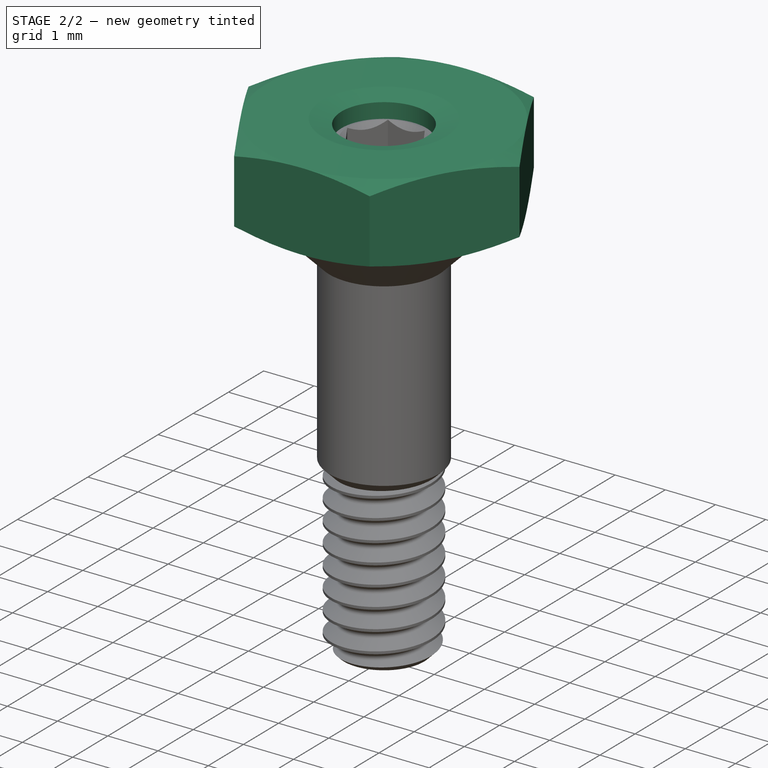
[diagram: stage 2 of 2 — iso view after this stage's code; geometry added in this stage tinted green]
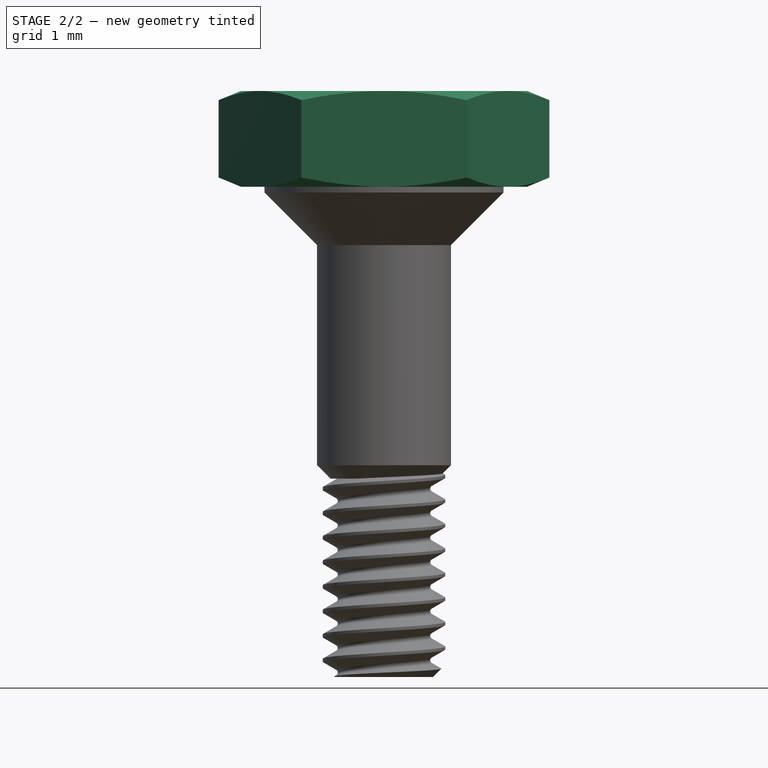
[diagram: stage 2 of 2 — front view after this stage's code; geometry added in this stage tinted green]
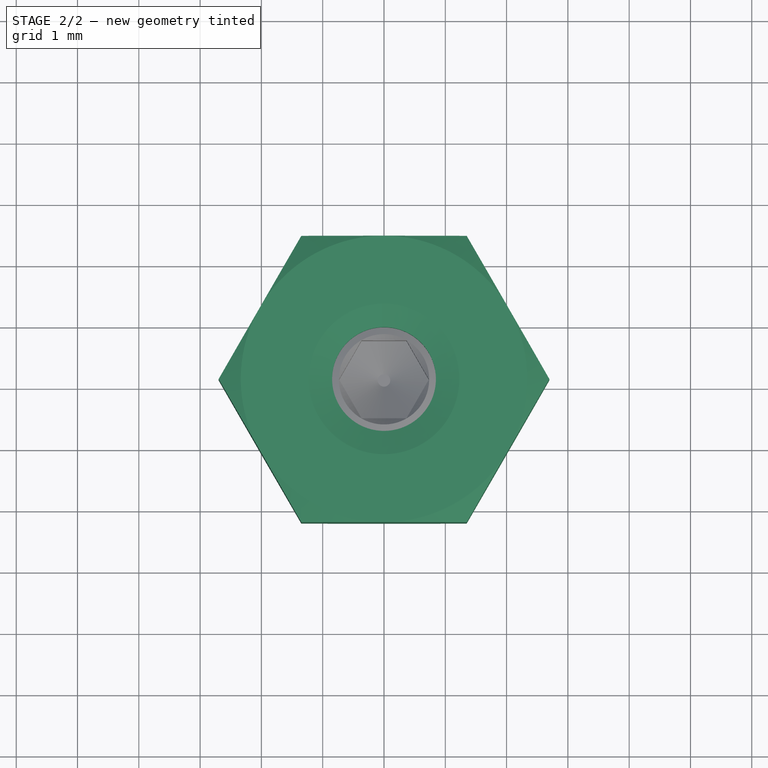
[diagram: stage 2 of 2 — top view after this stage's code; geometry added in this stage tinted green]
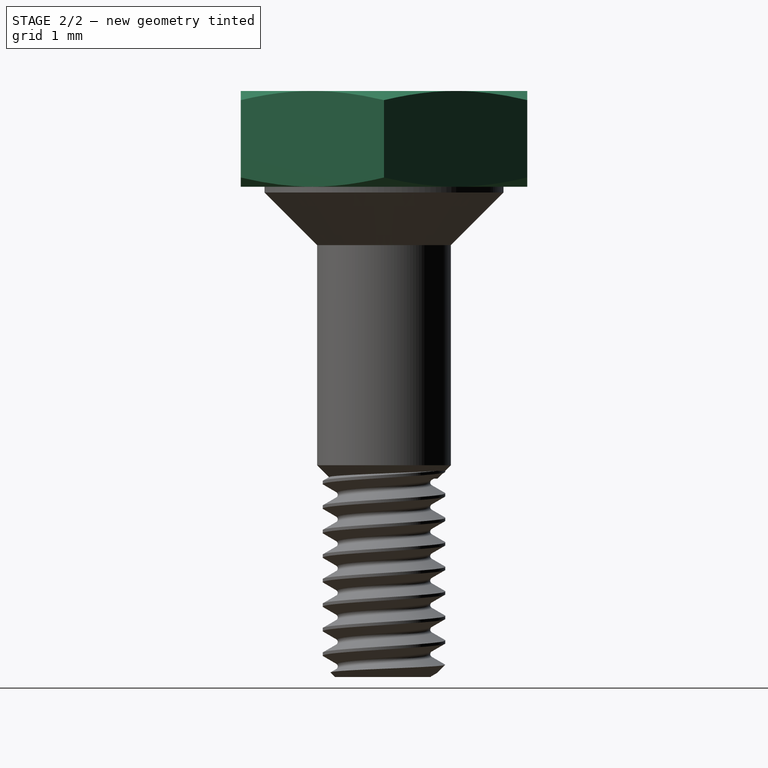
[diagram: stage 2 of 2 — right view after this stage's code; geometry added in this stage tinted green]
FEATURE [Sketcher::SketchObject] Sketch  label="bounding_box"
  FullyConstrained = true
  sketch-geometry (4):
    g0: LineSegment StartX=-50 StartY=50 StartZ=0 EndX=50 EndY=50 EndZ=0
    g1: LineSegment StartX=50 StartY=50 StartZ=0 EndX=50 EndY=-50 EndZ=0
    g2: LineSegment StartX=50 StartY=-50 StartZ=0 EndX=-50 EndY=-50 EndZ=0
    g3: LineSegment StartX=-50 StartY=-50 StartZ=0 EndX=-50 EndY=50 EndZ=0
  constraints (10):
    c: Coincident(g0,g1)
    c: Coincident(g1,g2)
    c: Coincident(g2,g3)
    c: Coincident(g3,g0)
    c: Horizontal(g2)
    c: Vertical(g1)
    c: Symmetric(g0,g0,g-2)
    c: Symmetric(g0,g2,g-1)
    c: Distance(g0,g-2) = 50
    c: Distance(g0,g-1) = 50
FEATURE [Sketcher::SketchObject] Sketch001  label="pcb_outline"
  FullyConstrained = true
  MapMode = 5
  sketch-geometry (4):
    g0: LineSegment StartX=-40.5 StartY=46.5 StartZ=0 EndX=40.5 EndY=46.5 EndZ=0
    g1: LineSegment StartX=40.5 StartY=46.5 StartZ=0 EndX=40.5 EndY=-46.5 EndZ=0
    g2: LineSegment StartX=40.5 StartY=-46.5 StartZ=0 EndX=-40.5 EndY=-46.5 EndZ=0
    g3: LineSegment StartX=-40.5 StartY=-46.5 StartZ=0 EndX=-40.5 EndY=46.5 EndZ=0
  constraints (10):
    c: Coincident(g0,g1)
    c: Coincident(g1,g2)
    c: Coincident(g2,g3)
    c: Coincident(g3,g0)
    c: Horizontal(g0)
    c: Vertical(g1)
    c: Symmetric(g2,g1,g-2)
    c: Symmetric(g0,g2,g-1)
    c: DistanceX(g0,g0) = 81
    c: DistanceY(g1,g1) = 93
FEATURE [PartDesign::CoordinateSystem] LCS_Origin
  AttacherType = Attacher::AttachEngine3D
  MapMode = 2
  Support = -> [X_Axis]
FEATURE [App::DocumentObjectGroup] Constraints
FEATURE [App::FeaturePython] Variables  # WARN: FeaturePython — macro-defined, semantics opaque (R4)
  Type = App::PropertyContainer
  leftWheelRotation = 15
  rightWheelRotation = 0
FEATURE [App::DocumentObjectGroup] Configurations
FEATURE [App::Link] pcb_body
  AttachedBy = #LCS_1
  AttachedTo = Parent Assembly#LCS_Origin
  LinkedObject = -> <external PCB.FCStd>#Body
  SolverId = Asm4EE
  expr: Placement = LCS_Origin.Placement * AttachmentOffset * PCB#LCS_1.Placement ^ -1
FEATURE [Part::FeaturePython] Nut  label="#2-Nut"  # Fasteners workbench fastener (typed FeaturePython)
  diameter = 3
  invert = false
  leftHanded = false
  matchOuter = false
  offset = 0
  thread = false
  type = 2
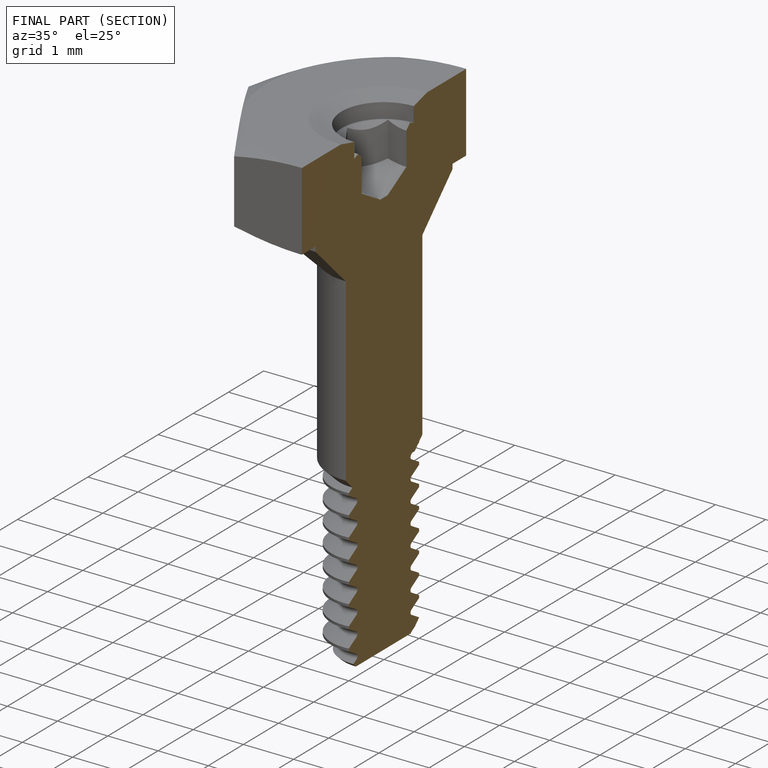
[diagram: finished part — half-section view (interior)]
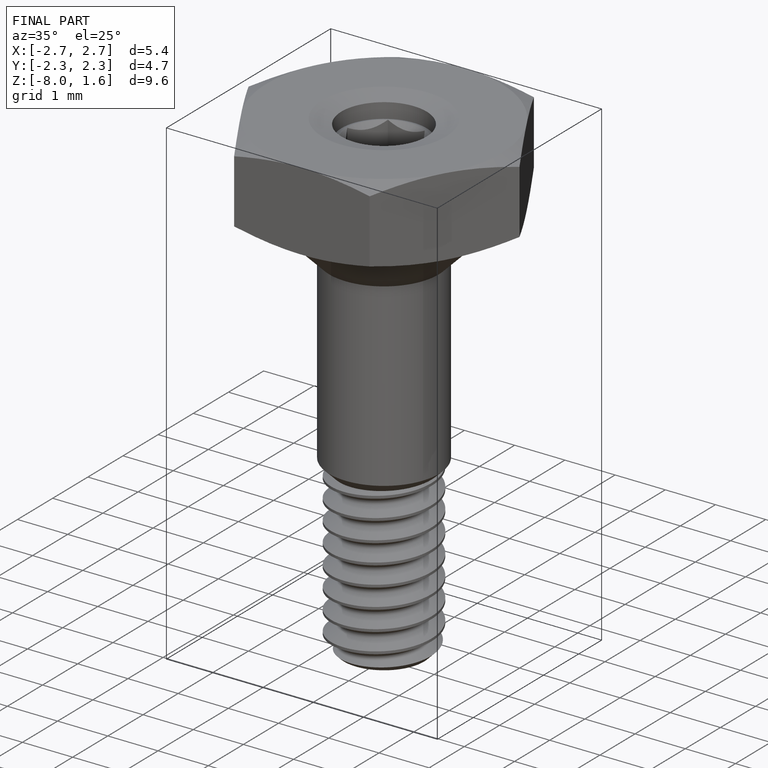
[diagram: finished part — iso view with bounding-box wireframe]
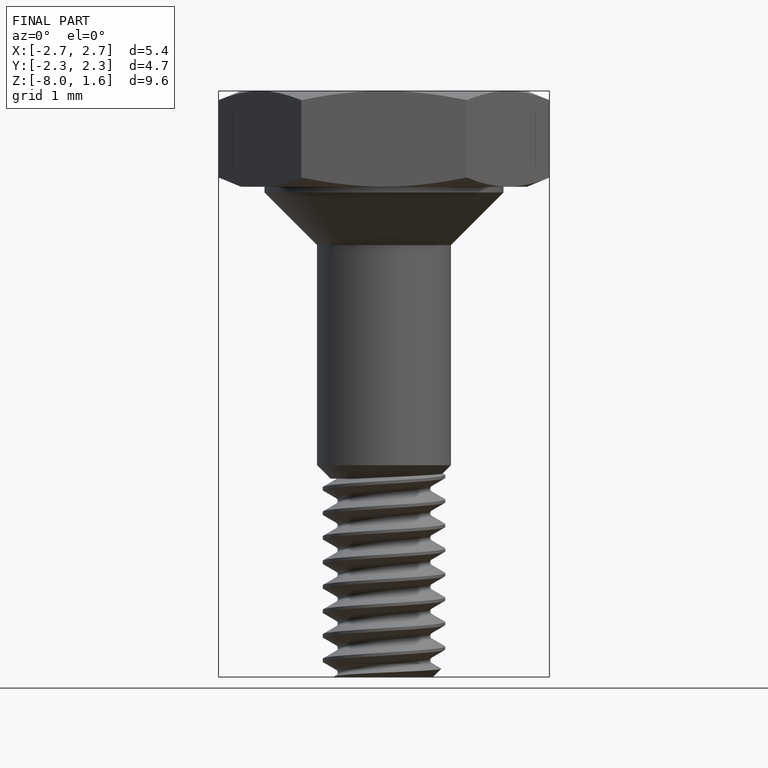
[diagram: finished part — front view with bounding-box wireframe]
